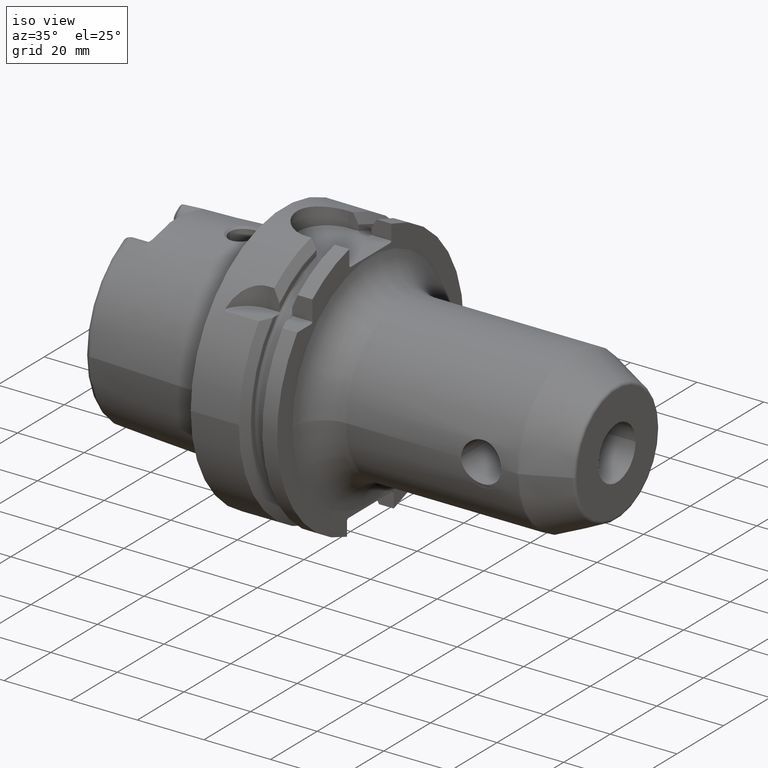
[diagram: clean part render]
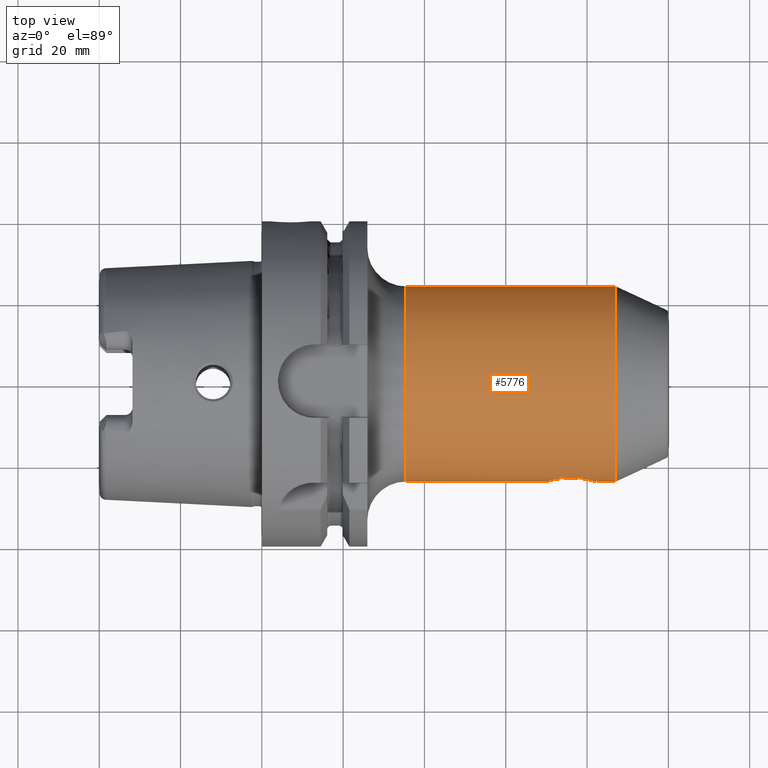
[diagram: tour spotlight — one face highlighted and labeled with its STEP entity id]
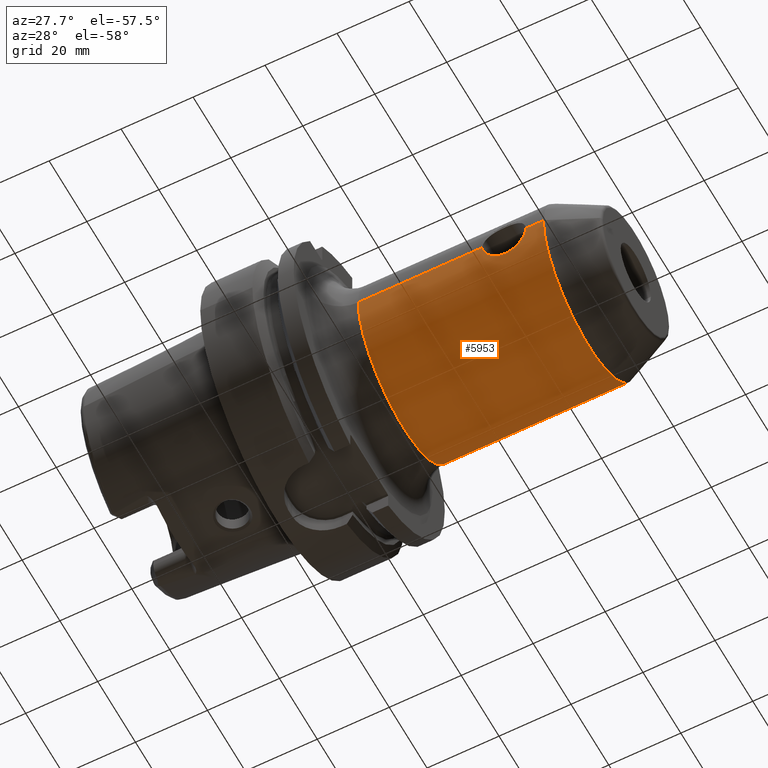
[diagram: tour spotlight — one face highlighted and labeled with its STEP entity id]
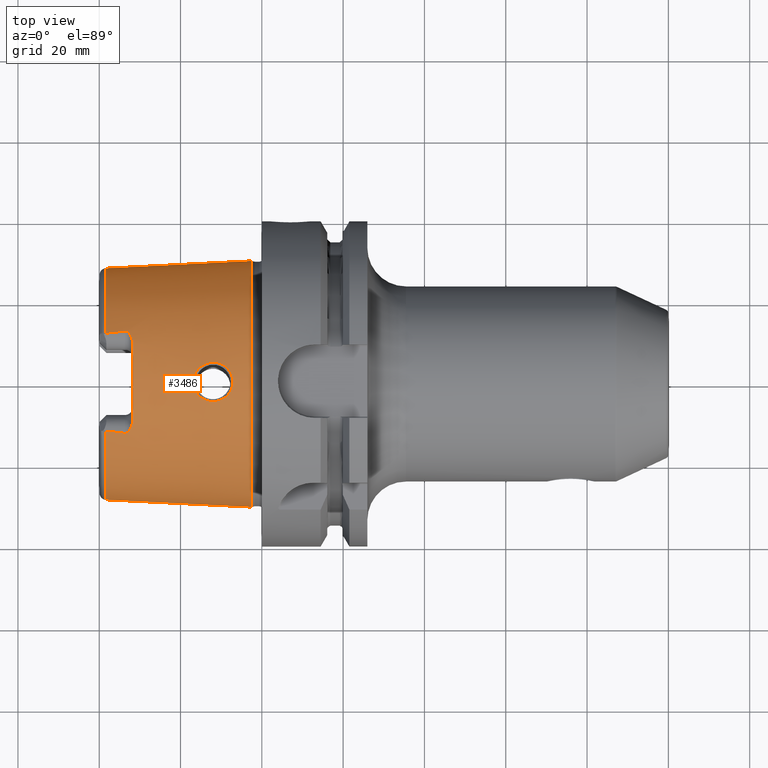
[diagram: tour spotlight — one face highlighted and labeled with its STEP entity id]
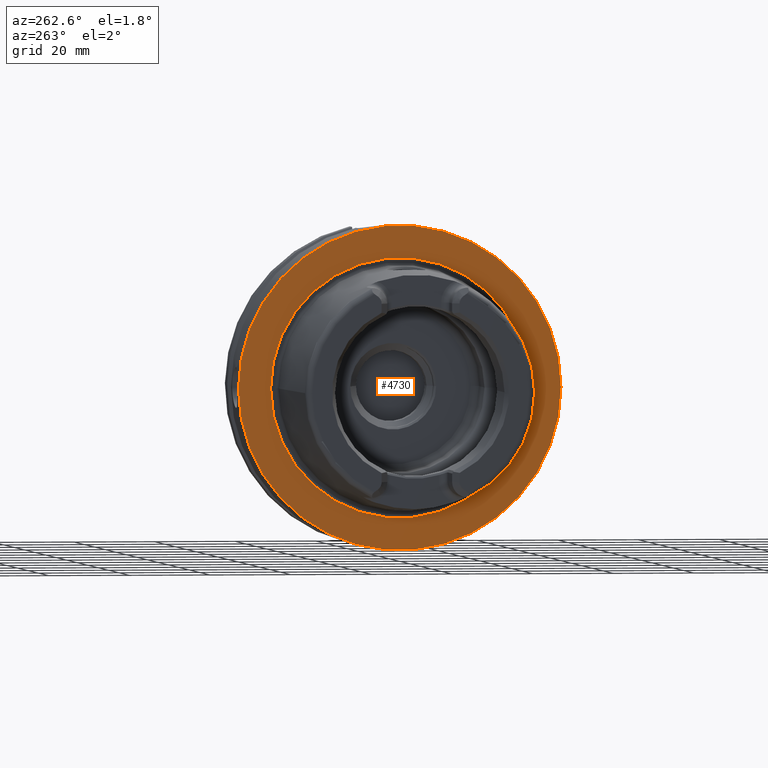
[diagram: tour spotlight — one face highlighted and labeled with its STEP entity id]
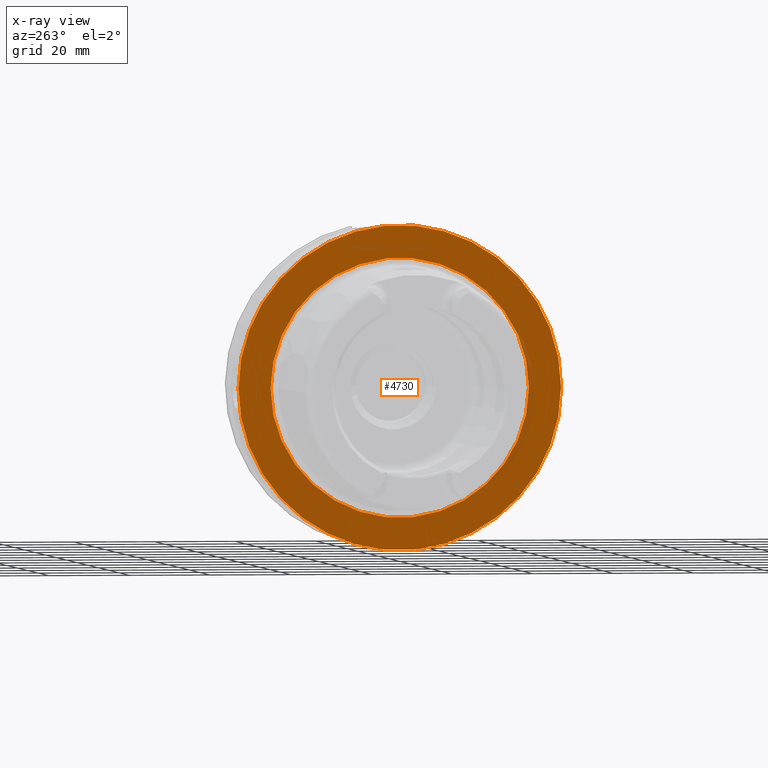
[diagram: x-ray of the same camera — body ghosted, this tour face saturated]
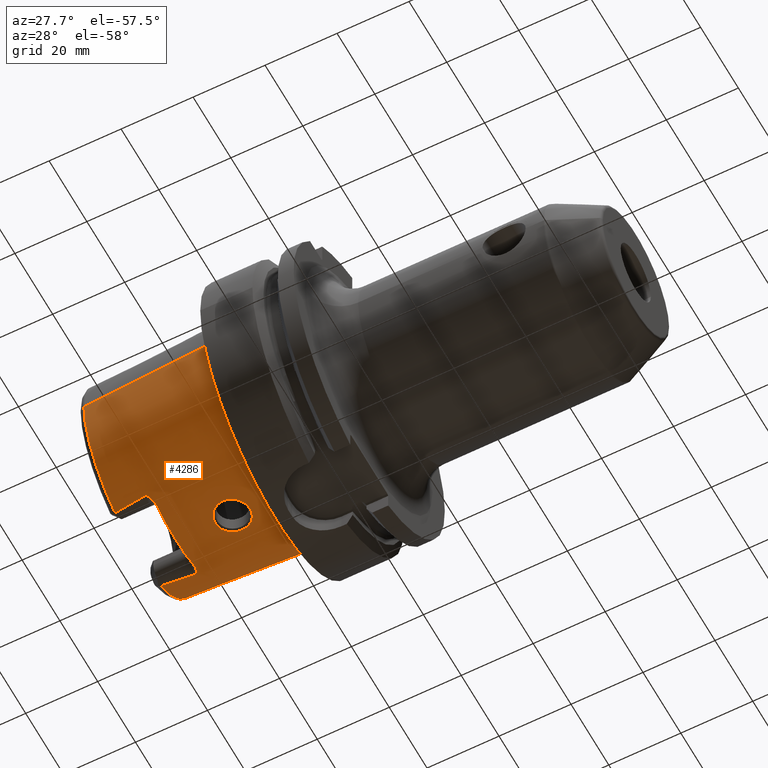
[diagram: tour spotlight — one face highlighted and labeled with its STEP entity id]
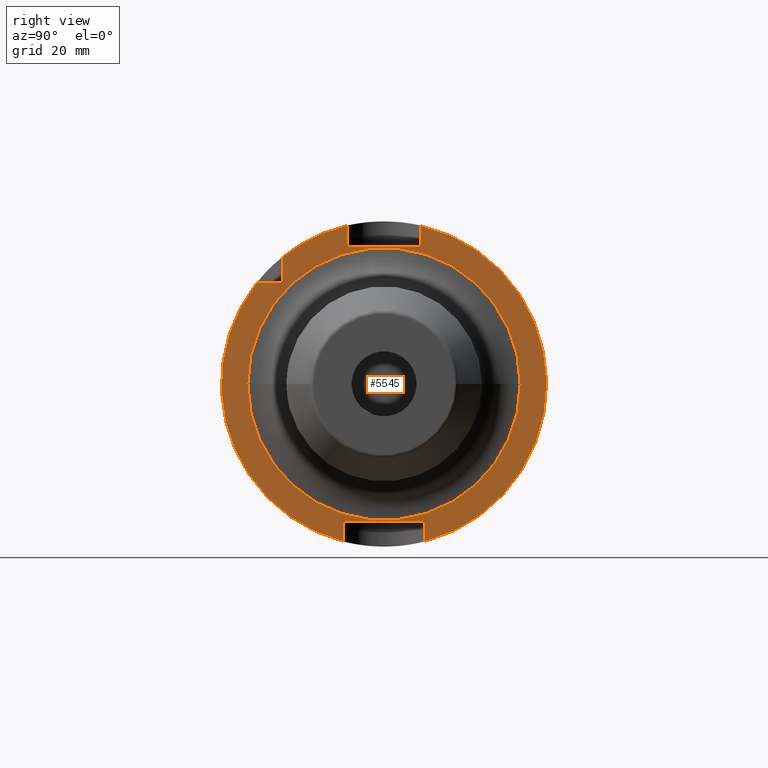
[diagram: tour spotlight — one face highlighted and labeled with its STEP entity id]
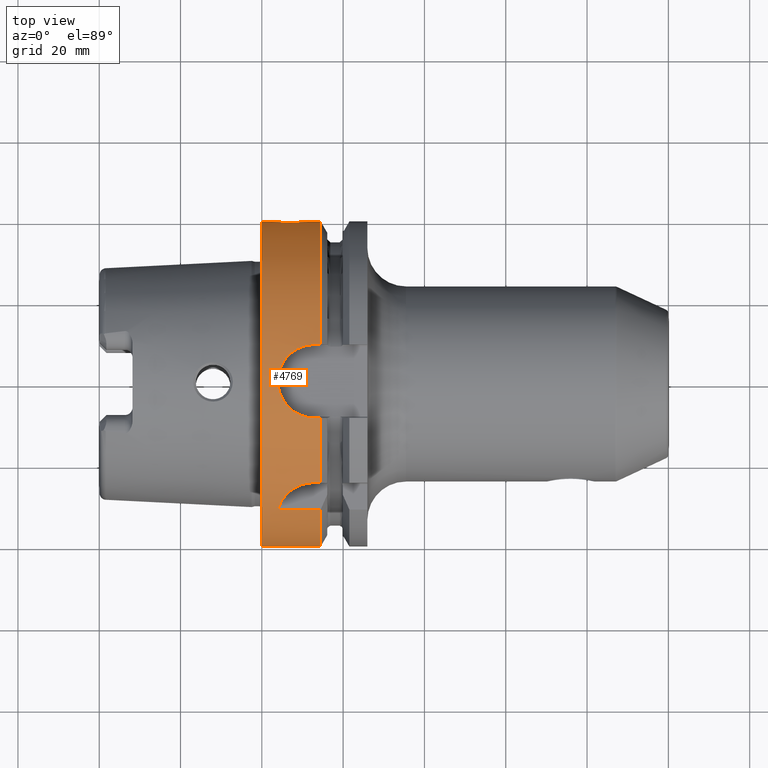
[diagram: tour spotlight — one face highlighted and labeled with its STEP entity id]
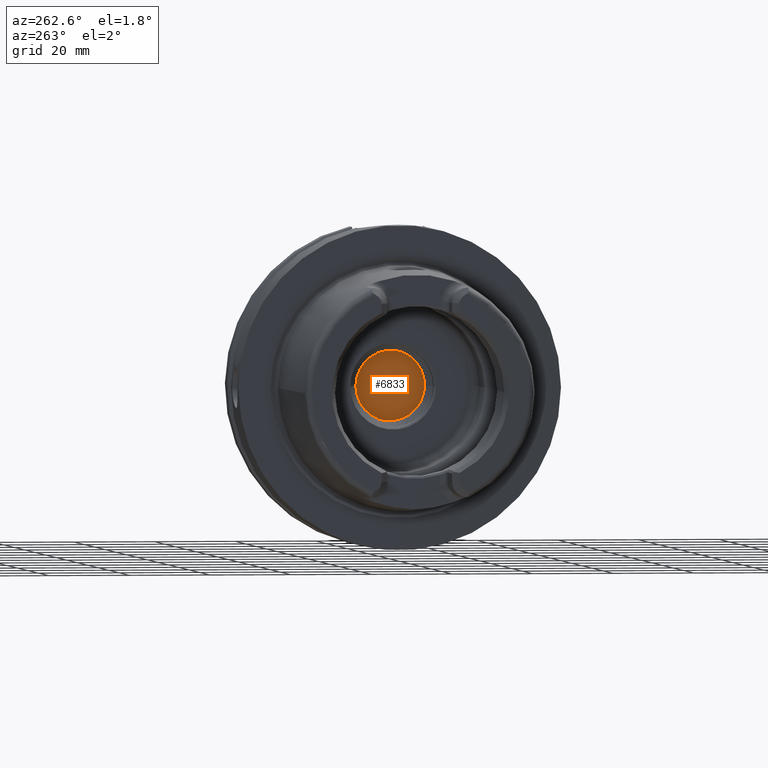
[diagram: tour spotlight — one face highlighted and labeled with its STEP entity id]
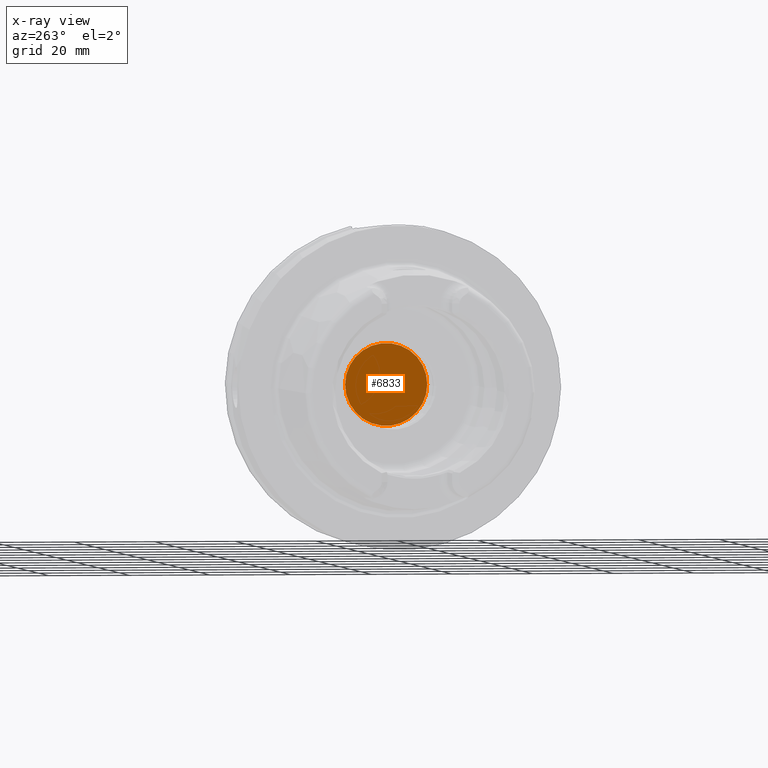
[diagram: x-ray of the same camera — body ghosted, this tour face saturated]
A machine part: a face-by-face anatomy tour. The part has 190 B-rep faces; the first image is the clean iso view, then the 8 largest visible faces are spotlighted one at a time (largest first), each with its STEP entity span.

Face 1 — top view, entity #5776. In plain terms, the highlighted cylindrical surface (partial cylindrical patch) has radius 24 mm, axis along (1, 0, 0).
Definition (entity closure, byte-faithful):
#2117=CARTESIAN_POINT('',(7.E1,-2.4E1,0.E0));
#2118=CARTESIAN_POINT('',(7.E1,-2.4E1,2.477917022418E-1));
#2119=CARTESIAN_POINT('',(7.003031307991E1,-2.399239312087E1,
7.430107699839E-1));
#2120=CARTESIAN_POINT('',(7.017194180488E1,-2.395736644567E1,1.493354354613E0));
#2121=CARTESIAN_POINT('',(7.040936188842E1,-2.390042638431E1,2.222515353025E0));
#2122=CARTESIAN_POINT('',(7.073545493526E1,-2.382589042015E1,2.911416186879E0));
#2123=CARTESIAN_POINT('',(7.114359335064E1,-2.373858503195E1,3.550797953452E0));
#2124=CARTESIAN_POINT('',(7.163240973621E1,-2.364291900347E1,4.137367715785E0));
#2125=CARTESIAN_POINT('',(7.219008635558E1,-2.354574380392E1,4.656021052142E0));
#2126=CARTESIAN_POINT('',(7.281078942191E1,-2.345283163757E1,5.101096780044E0));
#2127=CARTESIAN_POINT('',(7.347569260864E1,-2.337128037784E1,5.460589521688E0));
#2128=CARTESIAN_POINT('',(7.417999509457E1,-2.330542345764E1,5.733682675885E0));
#2129=CARTESIAN_POINT('',(7.490395259587E1,-2.325987046211E1,5.914763388263E0));
#2130=CARTESIAN_POINT('',(7.564654129181E1,-2.323662218192E1,6.004964036942E0));
#2131=CARTESIAN_POINT('',(7.638836501185E1,-2.323718076575E1,6.002814494013E0));
#2132=CARTESIAN_POINT('',(7.713058753963E1,-2.326153225515E1,5.908259270358E0));
#2133=CARTESIAN_POINT('',(7.785351378792E1,-2.330807531099E1,5.722955058829E0));
#2134=CARTESIAN_POINT('',(7.855668286222E1,-2.337481713083E1,5.445512487382E0));
#2135=CARTESIAN_POINT('',(7.921927096255E1,-2.345696094752E1,5.082182720346E0));
#2136=CARTESIAN_POINT('',(7.983757314460E1,-2.355025926154E1,4.633246828811E0));
#2137=CARTESIAN_POINT('',(8.039201356727E1,-2.364746553587E1,4.111459343109E0));
#2138=CARTESIAN_POINT('',(8.087798849474E1,-2.374302933962E1,3.521150244353E0));
#2139=CARTESIAN_POINT('',(8.128195669194E1,-2.382977011799E1,2.879561292221E0));
#2140=CARTESIAN_POINT('',(8.160149780748E1,-2.390299865724E1,2.193647280847E0));
#2141=CARTESIAN_POINT('',(8.183084261608E1,-2.395805854140E1,1.479420343060E0));
#2142=CARTESIAN_POINT('',(8.196943381336E1,-2.399233001052E1,
7.423531793238E-1));
#2143=CARTESIAN_POINT('',(8.2E1,-2.4E1,2.484730474860E-1));
#2144=CARTESIAN_POINT('',(8.2E1,-2.4E1,0.E0));
#2146=CARTESIAN_POINT('',(3.545E1,0.E0,0.E0));
#2147=DIRECTION('',(1.E0,0.E0,0.E0));
#2148=DIRECTION('',(0.E0,1.E0,0.E0));
#2149=AXIS2_PLACEMENT_3D('',#2146,#2147,#2148);
#2151=CARTESIAN_POINT('',(8.691126381430E1,0.E0,0.E0));
#2152=DIRECTION('',(-1.E0,0.E0,0.E0));
#2153=DIRECTION('',(0.E0,-1.E0,0.E0));
#2154=AXIS2_PLACEMENT_3D('',#2151,#2152,#2153);
#2335=DIRECTION('',(-1.E0,0.E0,-3.233359720301E-14));
#2336=VECTOR('',#2335,4.911263814300E0);
#2337=CARTESIAN_POINT('',(8.691126381430E1,-2.4E1,1.562298243284E-13));
#2338=LINE('',#2337,#2336);
#2344=DIRECTION('',(-1.E0,0.E0,1.113977943256E-14));
#2345=VECTOR('',#2344,5.146126381430E1);
#2346=CARTESIAN_POINT('',(8.691126381430E1,2.4E1,-1.569696577959E-13));
#2347=LINE('',#2346,#2345);
#2353=DIRECTION('',(-1.E0,0.E0,-1.199765417624E-14));
#2354=VECTOR('',#2353,3.455E1);
#2355=CARTESIAN_POINT('',(7.E1,-2.4E1,0.E0));
#2356=LINE('',#2355,#2354);
#3412=CARTESIAN_POINT('',(7.E1,-2.4E1,0.E0));
#3414=VERTEX_POINT('',#3412);
#3416=CARTESIAN_POINT('',(8.2E1,-2.4E1,0.E0));
#3418=VERTEX_POINT('',#3416);
#3429=CARTESIAN_POINT('',(3.545E1,-2.4E1,0.E0));
#3430=CARTESIAN_POINT('',(3.545E1,2.4E1,0.E0));
#3431=VERTEX_POINT('',#3429);
#3432=VERTEX_POINT('',#3430);
#3441=CARTESIAN_POINT('',(8.691126381430E1,2.4E1,0.E0));
#3442=CARTESIAN_POINT('',(8.691126381430E1,-2.4E1,0.E0));
#3443=VERTEX_POINT('',#3441);
#3444=VERTEX_POINT('',#3442);
#5758=CARTESIAN_POINT('',(2.22475E1,0.E0,0.E0));
#5759=DIRECTION('',(1.E0,0.E0,0.E0));
#5760=DIRECTION('',(0.E0,-1.E0,0.E0));
#5761=AXIS2_PLACEMENT_3D('',#5758,#5759,#5760);
#5762=CYLINDRICAL_SURFACE('',#5761,2.4E1);
#5764=ORIENTED_EDGE('',*,*,#5763,.F.);
#5766=ORIENTED_EDGE('',*,*,#5765,.T.);
#5767=ORIENTED_EDGE('',*,*,#5752,.F.);
#5769=ORIENTED_EDGE('',*,*,#5768,.F.);
#5771=ORIENTED_EDGE('',*,*,#5770,.F.);
#5773=ORIENTED_EDGE('',*,*,#5772,.T.);
#5774=EDGE_LOOP('',(#5764,#5766,#5767,#5769,#5771,#5773));
#5775=FACE_OUTER_BOUND('',#5774,.F.);
#5776=ADVANCED_FACE('',(#5775),#5762,.T.);
#2145=B_SPLINE_CURVE_WITH_KNOTS('',3,(#2117,#2118,#2119,#2120,#2121,#2122,#2123,
#2124,#2125,#2126,#2127,#2128,#2129,#2130,#2131,#2132,#2133,#2134,#2135,#2136,
#2137,#2138,#2139,#2140,#2141,#2142,#2143,#2144),.UNSPECIFIED.,.F.,.F.,(4,1,1,1,
1,1,1,1,1,1,1,1,1,1,1,1,1,1,1,1,1,1,1,1,1,4),(0.E0,4.E-2,8.E-2,1.2E-1,1.6E-1,
2.E-1,2.4E-1,2.8E-1,3.2E-1,3.6E-1,4.E-1,4.4E-1,4.8E-1,5.2E-1,5.6E-1,6.E-1,
6.4E-1,6.8E-1,7.2E-1,7.6E-1,8.E-1,8.4E-1,8.8E-1,9.2E-1,9.6E-1,1.E0),
.UNSPECIFIED.);
#2150=CIRCLE('',#2149,2.4E1);
#2155=CIRCLE('',#2154,2.4E1);
#5752=EDGE_CURVE('',#3432,#3431,#2150,.T.);
#5763=EDGE_CURVE('',#3414,#3418,#2145,.T.);
#5765=EDGE_CURVE('',#3414,#3431,#2356,.T.);
#5768=EDGE_CURVE('',#3443,#3432,#2347,.T.);
#5770=EDGE_CURVE('',#3444,#3443,#2155,.T.);
#5772=EDGE_CURVE('',#3444,#3418,#2338,.T.);

Face 2 — auxiliary view, entity #5953. In plain terms, the highlighted cylindrical surface (partial cylindrical patch) has radius 24 mm, axis along (1, 0, 0).
Definition (entity closure, byte-faithful):
#2306=CARTESIAN_POINT('',(8.2E1,-2.4E1,0.E0));
#2307=CARTESIAN_POINT('',(8.2E1,-2.4E1,-2.489456297532E-1));
#2308=CARTESIAN_POINT('',(8.196931060354E1,-2.399229912583E1,
-7.437456052756E-1));
#2309=CARTESIAN_POINT('',(8.183026168618E1,-2.395791542102E1,
-1.481955279273E0));
#2310=CARTESIAN_POINT('',(8.160002290904E1,-2.390264992903E1,
-2.197557558002E0));
#2311=CARTESIAN_POINT('',(8.127946719554E1,-2.382921173168E1,
-2.884255073446E0));
#2312=CARTESIAN_POINT('',(8.087387136692E1,-2.374217455698E1,
-3.526954724410E0));
#2313=CARTESIAN_POINT('',(8.038639427135E1,-2.364640953066E1,
-4.117541017387E0));
#2314=CARTESIAN_POINT('',(7.982991757305E1,-2.354899732375E1,
-4.639658253113E0));
#2315=CARTESIAN_POINT('',(7.920986531312E1,-2.345565438849E1,
-5.088194464469E0));
#2316=CARTESIAN_POINT('',(7.854519160490E1,-2.337354389098E1,
-5.450958627022E0));
#2317=CARTESIAN_POINT('',(7.784028319921E1,-2.330700863189E1,
-5.727278658608E0));
#2318=CARTESIAN_POINT('',(7.711551325228E1,-2.326078573019E1,
-5.911184298323E0));
#2319=CARTESIAN_POINT('',(7.637172174111E1,-2.323689315248E1,
-6.003921598397E0));
#2320=CARTESIAN_POINT('',(7.562851217377E1,-2.323688887216E1,
-6.003938231712E0));
#2321=CARTESIAN_POINT('',(7.488468395565E1,-2.326077671143E1,
-5.911219234599E0));
#2322=CARTESIAN_POINT('',(7.415997736252E1,-2.330698763448E1,
-5.727364366257E0));
#2323=CARTESIAN_POINT('',(7.345496924812E1,-2.337352655523E1,
-5.451031175813E0));
#2324=CARTESIAN_POINT('',(7.279040183763E1,-2.345561755777E1,
-5.088365368577E0));
#2325=CARTESIAN_POINT('',(7.217019810275E1,-2.354897835089E1,
-4.639751036074E0));
#2326=CARTESIAN_POINT('',(7.161384498106E1,-2.364636508495E1,
-4.117798826154E0));
#2327=CARTESIAN_POINT('',(7.112619514117E1,-2.374216054900E1,
-3.527044409047E0));
#2328=CARTESIAN_POINT('',(7.072071891928E1,-2.382917066687E1,
-2.884593609772E0));
#2329=CARTESIAN_POINT('',(7.040001150633E1,-2.390264138538E1,
-2.197660843164E0));
#2330=CARTESIAN_POINT('',(7.016979194086E1,-2.395790246760E1,
-1.482164818592E0));
#2331=CARTESIAN_POINT('',(7.003068353250E1,-2.399230047937E1,
-7.437602837049E-1));
#2332=CARTESIAN_POINT('',(7.E1,-2.4E1,-2.489485043415E-1));
#2333=CARTESIAN_POINT('',(7.E1,-2.4E1,0.E0));
#2335=DIRECTION('',(-1.E0,0.E0,-3.233359720301E-14));
#2336=VECTOR('',#2335,4.911263814300E0);
#2337=CARTESIAN_POINT('',(8.691126381430E1,-2.4E1,1.562298243284E-13));
#2338=LINE('',#2337,#2336);
#2339=CARTESIAN_POINT('',(8.691126381430E1,0.E0,0.E0));
#2340=DIRECTION('',(-1.E0,0.E0,0.E0));
#2341=DIRECTION('',(0.E0,1.E0,0.E0));
#2342=AXIS2_PLACEMENT_3D('',#2339,#2340,#2341);
#2344=DIRECTION('',(-1.E0,0.E0,1.113977943256E-14));
#2345=VECTOR('',#2344,5.146126381430E1);
#2346=CARTESIAN_POINT('',(8.691126381430E1,2.4E1,-1.569696577959E-13));
#2347=LINE('',#2346,#2345);
#2348=CARTESIAN_POINT('',(3.545E1,0.E0,0.E0));
#2349=DIRECTION('',(1.E0,0.E0,0.E0));
#2350=DIRECTION('',(0.E0,-1.E0,0.E0));
#2351=AXIS2_PLACEMENT_3D('',#2348,#2349,#2350);
#2353=DIRECTION('',(-1.E0,0.E0,-1.199765417624E-14));
#2354=VECTOR('',#2353,3.455E1);
#2355=CARTESIAN_POINT('',(7.E1,-2.4E1,0.E0));
#2356=LINE('',#2355,#2354);
#3412=CARTESIAN_POINT('',(7.E1,-2.4E1,0.E0));
#3414=VERTEX_POINT('',#3412);
#3416=CARTESIAN_POINT('',(8.2E1,-2.4E1,0.E0));
#3418=VERTEX_POINT('',#3416);
#3429=CARTESIAN_POINT('',(3.545E1,-2.4E1,0.E0));
#3430=CARTESIAN_POINT('',(3.545E1,2.4E1,0.E0));
#3431=VERTEX_POINT('',#3429);
#3432=VERTEX_POINT('',#3430);
#3441=CARTESIAN_POINT('',(8.691126381430E1,2.4E1,0.E0));
#3442=CARTESIAN_POINT('',(8.691126381430E1,-2.4E1,0.E0));
#3443=VERTEX_POINT('',#3441);
#3444=VERTEX_POINT('',#3442);
#5940=CARTESIAN_POINT('',(2.22475E1,0.E0,0.E0));
#5941=DIRECTION('',(1.E0,0.E0,0.E0));
#5942=DIRECTION('',(0.E0,-1.E0,0.E0));
#5943=AXIS2_PLACEMENT_3D('',#5940,#5941,#5942);
#5944=CYLINDRICAL_SURFACE('',#5943,2.4E1);
#5945=ORIENTED_EDGE('',*,*,#5801,.F.);
#5946=ORIENTED_EDGE('',*,*,#5772,.F.);
#5947=ORIENTED_EDGE('',*,*,#5932,.F.);
#5948=ORIENTED_EDGE('',*,*,#5768,.T.);
#5949=ORIENTED_EDGE('',*,*,#5738,.F.);
#5950=ORIENTED_EDGE('',*,*,#5765,.F.);
#5951=EDGE_LOOP('',(#5945,#5946,#5947,#5948,#5949,#5950));
#5952=FACE_OUTER_BOUND('',#5951,.F.);
#5953=ADVANCED_FACE('',(#5952),#5944,.T.);
#2334=B_SPLINE_CURVE_WITH_KNOTS('',3,(#2306,#2307,#2308,#2309,#2310,#2311,#2312,
#2313,#2314,#2315,#2316,#2317,#2318,#2319,#2320,#2321,#2322,#2323,#2324,#2325,
#2326,#2327,#2328,#2329,#2330,#2331,#2332,#2333),.UNSPECIFIED.,.F.,.F.,(4,1,1,1,
1,1,1,1,1,1,1,1,1,1,1,1,1,1,1,1,1,1,1,1,1,4),(0.E0,4.E-2,8.E-2,1.2E-1,1.6E-1,
2.E-1,2.4E-1,2.8E-1,3.2E-1,3.6E-1,4.E-1,4.4E-1,4.8E-1,5.2E-1,5.6E-1,6.E-1,
6.4E-1,6.8E-1,7.2E-1,7.6E-1,8.E-1,8.4E-1,8.8E-1,9.2E-1,9.6E-1,1.E0),
.UNSPECIFIED.);
#2343=CIRCLE('',#2342,2.4E1);
#2352=CIRCLE('',#2351,2.4E1);
#5738=EDGE_CURVE('',#3431,#3432,#2352,.T.);
#5765=EDGE_CURVE('',#3414,#3431,#2356,.T.);
#5768=EDGE_CURVE('',#3443,#3432,#2347,.T.);
#5772=EDGE_CURVE('',#3444,#3418,#2338,.T.);
#5801=EDGE_CURVE('',#3418,#3414,#2334,.T.);
#5932=EDGE_CURVE('',#3443,#3444,#2343,.T.);

Face 3 — top view, entity #3486. In plain terms, the highlighted conical surface has half-angle 2.868 deg.
Definition (entity closure, byte-faithful):
#2=CARTESIAN_POINT('',(-3.838005958779E1,-1.202761494014E1,2.582E1));
#3=CARTESIAN_POINT('',(-3.787001628786E1,-1.208813029846E1,2.582E1));
#4=CARTESIAN_POINT('',(-3.684328790090E1,-1.220919847539E1,2.582E1));
#5=CARTESIAN_POINT('',(-3.528334906851E1,-1.239091780986E1,2.582E1));
#6=CARTESIAN_POINT('',(-3.423000506102E1,-1.251216867025E1,2.582E1));
#7=CARTESIAN_POINT('',(-3.37E1,-1.257282075212E1,2.582E1));
#9=CARTESIAN_POINT('',(-3.18E1,0.E0,0.E0));
#10=DIRECTION('',(1.E0,0.E0,0.E0));
#11=DIRECTION('',(0.E0,3.298905943227E-1,9.440191712976E-1));
#12=AXIS2_PLACEMENT_3D('',#9,#10,#11);
#14=CARTESIAN_POINT('',(-3.37E1,1.257282075212E1,2.582E1));
#15=CARTESIAN_POINT('',(-3.422998473003E1,1.251217099686E1,2.582E1));
#16=CARTESIAN_POINT('',(-3.528330164043E1,1.239092329222E1,2.582E1));
#17=CARTESIAN_POINT('',(-3.684324088319E1,1.220920399510E1,2.582E1));
#18=CARTESIAN_POINT('',(-3.786999614236E1,1.208813268867E1,2.582E1));
#19=CARTESIAN_POINT('',(-3.838005958779E1,1.202761494014E1,2.582E1));
#21=CARTESIAN_POINT('',(-2.5E0,0.E0,0.E0));
#22=DIRECTION('',(1.E0,0.E0,0.E0));
#23=DIRECTION('',(0.E0,1.E0,0.E0));
#24=AXIS2_PLACEMENT_3D('',#21,#22,#23);
#26=CARTESIAN_POINT('',(-1.684926277274E1,-1.002884470798E-10,
2.956263755557E1));
#27=CARTESIAN_POINT('',(-1.684937304044E1,2.033861341723E-1,2.956267949939E1));
#28=CARTESIAN_POINT('',(-1.682163157721E1,6.410289906772E-1,2.955948957445E1));
#29=CARTESIAN_POINT('',(-1.668837856093E1,1.302835564834E0,2.954461139449E1));
#30=CARTESIAN_POINT('',(-1.645061469174E1,1.966039111372E0,2.951956742161E1));
#31=CARTESIAN_POINT('',(-1.611941320151E1,2.587782446801E0,2.948789404824E1));
#32=CARTESIAN_POINT('',(-1.570132589063E1,3.155309242196E0,2.945324904672E1));
#33=CARTESIAN_POINT('',(-1.520571059301E1,3.655918779164E0,2.941991203695E1));
#34=CARTESIAN_POINT('',(-1.464408370550E1,4.078817868490E0,2.939227627186E1));
#35=CARTESIAN_POINT('',(-1.402807251898E1,4.416143754398E0,2.937435300650E1));
#36=CARTESIAN_POINT('',(-1.337011775297E1,4.661531150171E0,2.936952263481E1));
#37=CARTESIAN_POINT('',(-1.268341907618E1,4.810200619440E0,2.938023670559E1));
#38=CARTESIAN_POINT('',(-1.198171612511E1,4.859013833167E0,2.940778493598E1));
#39=CARTESIAN_POINT('',(-1.127913216107E1,4.806537694062E0,2.945214180404E1));
#40=CARTESIAN_POINT('',(-1.058998296166E1,4.653073350805E0,2.951191391226E1));
#41=CARTESIAN_POINT('',(-9.929264808533E0,4.401094116533E0,2.958429239917E1));
#42=CARTESIAN_POINT('',(-9.311456301687E0,4.055347374901E0,2.966526429372E1));
#43=CARTESIAN_POINT('',(-8.750589837153E0,3.623174396625E0,2.974984946794E1));
#44=CARTESIAN_POINT('',(-8.259202472749E0,3.114211891448E0,2.983257860859E1));
#45=CARTESIAN_POINT('',(-7.848385239702E0,2.540769074061E0,2.990789501548E1));
#46=CARTESIAN_POINT('',(-7.526395885301E0,1.916767288886E0,2.997082027656E1));
#47=CARTESIAN_POINT('',(-7.297993576609E0,1.254497366463E0,3.001752398256E1));
#48=CARTESIAN_POINT('',(-7.175209953833E0,6.091949575265E-1,3.004335015960E1));
#49=CARTESIAN_POINT('',(-7.150670116772E0,1.884000434015E-1,3.004856720548E1));
#50=CARTESIAN_POINT('',(-7.150738218315E0,5.651020425119E-11,3.004853462804E1));
#52=CARTESIAN_POINT('',(-7.150738218315E0,5.651020425119E-11,3.004853462804E1));
#53=CARTESIAN_POINT('',(-7.150639194679E0,-2.008127303189E-1,3.004858265701E1));
#54=CARTESIAN_POINT('',(-7.177595076216E0,-6.339537647100E-1,3.004283618319E1));
#55=CARTESIAN_POINT('',(-7.307733291871E0,-1.290522041472E0,3.001549880947E1));
#56=CARTESIAN_POINT('',(-7.541192489454E0,-1.951003281635E0,2.996785355279E1));
#57=CARTESIAN_POINT('',(-7.868035178490E0,-2.572630096537E0,2.990416558295E1));
#58=CARTESIAN_POINT('',(-8.283376487059E0,-3.143002895017E0,2.982832078229E1));
#59=CARTESIAN_POINT('',(-8.778784502038E0,-3.648197291895E0,2.974534652783E1));
#60=CARTESIAN_POINT('',(-9.342975409414E0,-4.075967574833E0,2.966082359098E1));
#61=CARTESIAN_POINT('',(-9.963360418374E0,-4.416864489204E0,2.958019763333E1));
#62=CARTESIAN_POINT('',(-1.062592778541E1,-4.663711299534E0,2.950839906361E1));
#63=CARTESIAN_POINT('',(-1.131616090171E1,-4.811863720704E0,2.944938575639E1));
#64=CARTESIAN_POINT('',(-1.201903411255E1,-4.858961889764E0,2.940589824070E1));
#65=CARTESIAN_POINT('',(-1.272025286322E1,-4.804813544591E0,2.937925425199E1));
#66=CARTESIAN_POINT('',(-1.340572831730E1,-4.650946098487E0,2.936940607344E1));
#67=CARTESIAN_POINT('',(-1.406176456909E1,-4.400579887980E0,2.937499829139E1));
#68=CARTESIAN_POINT('',(-1.467520997003E1,-4.058561372629E0,2.939352591856E1));
#69=CARTESIAN_POINT('',(-1.523361553652E1,-3.631361090141E0,2.942156637027E1));
#70=CARTESIAN_POINT('',(-1.572537628578E1,-3.126974958736E0,2.945508044252E1));
#71=CARTESIAN_POINT('',(-1.613907889225E1,-2.556295092848E0,2.948967040454E1));
#72=CARTESIAN_POINT('',(-1.646548959217E1,-1.932090523715E0,2.952107799393E1));
#73=CARTESIAN_POINT('',(-1.669818831847E1,-1.267075322463E0,2.954568455629E1));
#74=CARTESIAN_POINT('',(-1.682404263510E1,-6.164275527337E-1,2.955977259489E1));
#75=CARTESIAN_POINT('',(-1.684933892991E1,-1.910760055714E-1,2.956266622578E1));
#76=CARTESIAN_POINT('',(-1.684926277274E1,-1.002884470798E-10,
2.956263755557E1));
#86=CARTESIAN_POINT('',(-3.256049631843E1,-1.19E1,2.619962788776E1));
#87=CARTESIAN_POINT('',(-3.261602752785E1,-1.198490537769E1,2.615800780208E1));
#88=CARTESIAN_POINT('',(-3.273200125842E1,-1.213917745364E1,2.608054194551E1));
#89=CARTESIAN_POINT('',(-3.292092650722E1,-1.232485155039E1,2.598269910656E1));
#90=CARTESIAN_POINT('',(-3.311910867137E1,-1.246020915663E1,2.590692822175E1));
#91=CARTESIAN_POINT('',(-3.331744562008E1,-1.254389546970E1,2.585539856424E1));
#92=CARTESIAN_POINT('',(-3.350854052034E1,-1.258151788313E1,2.582643479434E1));
#93=CARTESIAN_POINT('',(-3.363663769880E1,-1.258007173095E1,2.582E1));
#94=CARTESIAN_POINT('',(-3.37E1,-1.257282075212E1,2.582E1));
#96=CARTESIAN_POINT('',(-3.18E1,-9.505342226388E0,2.720060967448E1));
#97=CARTESIAN_POINT('',(-3.18E1,-9.649242527110E0,2.715032324263E1));
#98=CARTESIAN_POINT('',(-3.181755867472E1,-9.946865130161E0,2.704281700902E1));
#99=CARTESIAN_POINT('',(-3.190259926041E1,-1.042016501910E1,2.685965570649E1));
#100=CARTESIAN_POINT('',(-3.205601682004E1,-1.092429939880E1,2.665052855991E1));
#101=CARTESIAN_POINT('',(-3.228114186276E1,-1.143654264419E1,2.642234259686E1));
#102=CARTESIAN_POINT('',(-3.246137222668E1,-1.174844255084E1,2.627392040244E1));
#103=CARTESIAN_POINT('',(-3.256049631843E1,-1.19E1,2.619962788776E1));
#191=CARTESIAN_POINT('',(-3.838005958779E1,0.E0,0.E0));
#192=DIRECTION('',(1.E0,0.E0,0.E0));
#193=DIRECTION('',(0.E0,1.E0,0.E0));
#194=AXIS2_PLACEMENT_3D('',#191,#192,#193);
#201=CARTESIAN_POINT('',(-3.838005958779E1,1.202761494014E1,2.582E1));
#273=CARTESIAN_POINT('',(-3.838005958779E1,0.E0,0.E0));
#274=DIRECTION('',(1.E0,0.E0,0.E0));
#275=DIRECTION('',(0.E0,-4.222592419107E-1,9.064751141763E-1));
#276=AXIS2_PLACEMENT_3D('',#273,#274,#275);
#469=CARTESIAN_POINT('',(-3.256049631843E1,1.19E1,2.619962788776E1));
#470=CARTESIAN_POINT('',(-3.246125324519E1,1.174826063209E1,2.627400957788E1));
#471=CARTESIAN_POINT('',(-3.228093163735E1,1.143609460033E1,2.642254529101E1));
#472=CARTESIAN_POINT('',(-3.205613775510E1,1.092457454830E1,2.665040597024E1));
#473=CARTESIAN_POINT('',(-3.190262587682E1,1.042031941347E1,2.685959626116E1));
#474=CARTESIAN_POINT('',(-3.181756598114E1,9.946935005697E0,2.704279107821E1));
#475=CARTESIAN_POINT('',(-3.18E1,9.649263546290E0,2.715031589741E1));
#476=CARTESIAN_POINT('',(-3.18E1,9.505342226388E0,2.720060967448E1));
#510=CARTESIAN_POINT('',(-3.37E1,1.257282075212E1,2.582E1));
#511=CARTESIAN_POINT('',(-3.363542652594E1,1.258021033370E1,2.582E1));
#512=CARTESIAN_POINT('',(-3.350488583529E1,1.258184559471E1,2.582647968574E1));
#513=CARTESIAN_POINT('',(-3.330304964188E1,1.253975466323E1,2.585821384966E1));
#514=CARTESIAN_POINT('',(-3.310808158990E1,1.245349367346E1,2.591076969470E1));
#515=CARTESIAN_POINT('',(-3.291635118129E1,1.232056995733E1,2.598497486540E1));
#516=CARTESIAN_POINT('',(-3.273089922141E1,1.213766451026E1,2.608129903733E1));
#517=CARTESIAN_POINT('',(-3.261579755266E1,1.198455375326E1,2.615818016618E1));
#518=CARTESIAN_POINT('',(-3.256049631843E1,1.19E1,2.619962788776E1));
#779=DIRECTION('',(-9.987473526255E-1,5.003724236654E-2,0.E0));
#780=VECTOR('',#779,3.592506102115E1);
#781=CARTESIAN_POINT('',(-2.5E0,-3.028155E1,0.E0));
#782=LINE('',#781,#780);
#788=DIRECTION('',(-9.987473526255E-1,-5.003724236654E-2,0.E0));
#789=VECTOR('',#788,3.592506102115E1);
#790=CARTESIAN_POINT('',(-2.5E0,3.028155E1,0.E0));
#791=LINE('',#790,#789);
#2955=CARTESIAN_POINT('',(-2.5E0,3.028155E1,0.E0));
#2956=CARTESIAN_POINT('',(-2.5E0,-3.028155E1,0.E0));
#2957=VERTEX_POINT('',#2955);
#2958=VERTEX_POINT('',#2956);
#2959=CARTESIAN_POINT('',(-3.838005958779E1,2.848395901465E1,0.E0));
#2960=VERTEX_POINT('',#2959);
#2961=CARTESIAN_POINT('',(-3.838005958779E1,-2.848395901465E1,0.E0));
#2962=VERTEX_POINT('',#2961);
#2976=VERTEX_POINT('',#201);
#2977=CARTESIAN_POINT('',(-3.838005958779E1,-1.202761494014E1,2.582E1));
#2978=VERTEX_POINT('',#2977);
#2993=CARTESIAN_POINT('',(-3.18E1,9.505342226388E0,2.720060967448E1));
#2994=VERTEX_POINT('',#2993);
#2997=CARTESIAN_POINT('',(-3.37E1,1.257282075212E1,2.582E1));
#2998=VERTEX_POINT('',#2997);
#2999=CARTESIAN_POINT('',(-3.18E1,-9.505342226388E0,2.720060967448E1));
#3000=VERTEX_POINT('',#2999);
#3003=CARTESIAN_POINT('',(-3.37E1,-1.257282075212E1,2.582E1));
#3004=VERTEX_POINT('',#3003);
#3005=VERTEX_POINT('',#518);
#3006=VERTEX_POINT('',#86);
#3287=VERTEX_POINT('',#26);
#3288=VERTEX_POINT('',#50);
#3449=CARTESIAN_POINT('',(-2.044002979389E1,0.E0,0.E0));
#3450=DIRECTION('',(1.E0,0.E0,0.E0));
#3451=DIRECTION('',(0.E0,-1.E0,0.E0));
#3452=AXIS2_PLACEMENT_3D('',#3449,#3450,#3451);
#3453=CONICAL_SURFACE('',#3452,2.938275450733E1,2.868120487315E0);
#3455=ORIENTED_EDGE('',*,*,#3454,.T.);
#3457=ORIENTED_EDGE('',*,*,#3456,.F.);
#3459=ORIENTED_EDGE('',*,*,#3458,.F.);
#3461=ORIENTED_EDGE('',*,*,#3460,.F.);
#3463=ORIENTED_EDGE('',*,*,#3462,.F.);
#3465=ORIENTED_EDGE('',*,*,#3464,.F.);
#3467=ORIENTED_EDGE('',*,*,#3466,.T.);
#3469=ORIENTED_EDGE('',*,*,#3468,.F.);
#3471=ORIENTED_EDGE('',*,*,#3470,.F.);
#3473=ORIENTED_EDGE('',*,*,#3472,.T.);
#3475=ORIENTED_EDGE('',*,*,#3474,.T.);
#3477=ORIENTED_EDGE('',*,*,#3476,.F.);
#3478=EDGE_LOOP('',(#3455,#3457,#3459,#3461,#3463,#3465,#3467,#3469,#3471,#3473,
#3475,#3477));
#3479=FACE_OUTER_BOUND('',#3478,.F.);
#3481=ORIENTED_EDGE('',*,*,#3480,.F.);
#3483=ORIENTED_EDGE('',*,*,#3482,.F.);
#3484=EDGE_LOOP('',(#3481,#3483));
#3485=FACE_BOUND('',#3484,.F.);
#3486=ADVANCED_FACE('',(#3479,#3485),#3453,.T.);
#8=B_SPLINE_CURVE_WITH_KNOTS('',3,(#2,#3,#4,#5,#6,#7),.UNSPECIFIED.,.F.,.F.,(4,
1,1,4),(0.E0,3.333333333333E-1,6.666666666667E-1,1.E0),.UNSPECIFIED.);
#13=CIRCLE('',#12,2.881362E1);
#20=B_SPLINE_CURVE_WITH_KNOTS('',3,(#14,#15,#16,#17,#18,#19),.UNSPECIFIED.,.F.,
.F.,(4,1,1,4),(0.E0,3.333333333333E-1,6.666666666667E-1,1.E0),.UNSPECIFIED.);
#25=CIRCLE('',#24,3.028155E1);
#51=B_SPLINE_CURVE_WITH_KNOTS('',3,(#26,#27,#28,#29,#30,#31,#32,#33,#34,#35,#36,
#37,#38,#39,#40,#41,#42,#43,#44,#45,#46,#47,#48,#49,#50),.UNSPECIFIED.,.F.,.F.,(
4,1,1,1,1,1,1,1,1,1,1,1,1,1,1,1,1,1,1,1,1,1,4),(0.E0,4.024163094443E-2,
8.635036534567E-2,1.324590997469E-1,1.785678341482E-1,2.246765685494E-1,
2.707853029506E-1,3.168940373519E-1,3.630027717531E-1,4.091115061544E-1,
4.552202405556E-1,5.013289749569E-1,5.474377093581E-1,5.935464437594E-1,
6.396551781606E-1,6.857639125618E-1,7.318726469631E-1,7.779813813643E-1,
8.240901157656E-1,8.701988501668E-1,9.163075845681E-1,9.624163189693E-1,1.E0),
.UNSPECIFIED.);
#77=B_SPLINE_CURVE_WITH_KNOTS('',3,(#52,#53,#54,#55,#56,#57,#58,#59,#60,#61,#62,
#63,#64,#65,#66,#67,#68,#69,#70,#71,#72,#73,#74,#75,#76),.UNSPECIFIED.,.F.,.F.,(
4,1,1,1,1,1,1,1,1,1,1,1,1,1,1,1,1,1,1,1,1,1,4),(0.E0,4.010005573561E-2,
8.620621504333E-2,1.323123743511E-1,1.784185336588E-1,2.245246929665E-1,
2.706308522742E-1,3.167370115820E-1,3.628431708897E-1,4.089493301974E-1,
4.550554895051E-1,5.011616488128E-1,5.472678081206E-1,5.933739674283E-1,
6.394801267360E-1,6.855862860437E-1,7.316924453515E-1,7.777986046592E-1,
8.239047639669E-1,8.700109232746E-1,9.161170825824E-1,9.622232418901E-1,1.E0),
.UNSPECIFIED.);
#95=B_SPLINE_CURVE_WITH_KNOTS('',3,(#86,#87,#88,#89,#90,#91,#92,#93,#94),
.UNSPECIFIED.,.F.,.F.,(4,1,1,1,1,1,4),(0.E0,1.666666666667E-1,3.333333333333E-1,
5.E-1,6.666666666667E-1,8.333333333333E-1,1.E0),.UNSPECIFIED.);
#104=B_SPLINE_CURVE_WITH_KNOTS('',3,(#96,#97,#98,#99,#100,#101,#102,#103),
.UNSPECIFIED.,.F.,.F.,(4,1,1,1,1,4),(0.E0,2.E-1,4.E-1,6.E-1,8.E-1,1.E0),
.UNSPECIFIED.);
#195=CIRCLE('',#194,2.848395901465E1);
#277=CIRCLE('',#276,2.848395901465E1);
#477=B_SPLINE_CURVE_WITH_KNOTS('',3,(#469,#470,#471,#472,#473,#474,#475,#476),
.UNSPECIFIED.,.F.,.F.,(4,1,1,1,1,4),(0.E0,2.E-1,4.E-1,6.E-1,8.E-1,1.E0),
.UNSPECIFIED.);
#519=B_SPLINE_CURVE_WITH_KNOTS('',3,(#510,#511,#512,#513,#514,#515,#516,#517,
#518),.UNSPECIFIED.,.F.,.F.,(4,1,1,1,1,1,4),(0.E0,1.666666666667E-1,
3.333333333333E-1,5.E-1,6.666666666667E-1,8.333333333333E-1,1.E0),
.UNSPECIFIED.);
#3454=EDGE_CURVE('',#2978,#3004,#8,.T.);
#3456=EDGE_CURVE('',#3006,#3004,#95,.T.);
#3458=EDGE_CURVE('',#3000,#3006,#104,.T.);
#3460=EDGE_CURVE('',#2994,#3000,#13,.T.);
#3462=EDGE_CURVE('',#3005,#2994,#477,.T.);
#3464=EDGE_CURVE('',#2998,#3005,#519,.T.);
#3466=EDGE_CURVE('',#2998,#2976,#20,.T.);
#3468=EDGE_CURVE('',#2960,#2976,#195,.T.);
#3470=EDGE_CURVE('',#2957,#2960,#791,.T.);
#3472=EDGE_CURVE('',#2957,#2958,#25,.T.);
#3474=EDGE_CURVE('',#2958,#2962,#782,.T.);
#3476=EDGE_CURVE('',#2978,#2962,#277,.T.);
#3480=EDGE_CURVE('',#3287,#3288,#51,.T.);
#3482=EDGE_CURVE('',#3288,#3287,#77,.T.);

Face 4 — auxiliary view, entity #4730. An x-ray twin of the same camera follows (body ghosted, this face saturated) — the face is partly hidden behind the body. In plain terms, the highlighted planar face has unit normal (1, 0, 0).
Definition (entity closure, byte-faithful):
#1092=CARTESIAN_POINT('',(2.842170943040E-14,0.E0,0.E0));
#1093=DIRECTION('',(1.E0,0.E0,0.E0));
#1094=DIRECTION('',(0.E0,1.E0,0.E0));
#1095=AXIS2_PLACEMENT_3D('',#1092,#1093,#1094);
#1097=CARTESIAN_POINT('',(2.842170943040E-14,0.E0,0.E0));
#1098=DIRECTION('',(-1.E0,0.E0,0.E0));
#1099=DIRECTION('',(0.E0,1.E0,0.E0));
#1100=AXIS2_PLACEMENT_3D('',#1097,#1098,#1099);
#1102=CARTESIAN_POINT('',(0.E0,0.E0,0.E0));
#1103=DIRECTION('',(-1.E0,0.E0,0.E0));
#1104=DIRECTION('',(0.E0,-1.E0,0.E0));
#1105=AXIS2_PLACEMENT_3D('',#1102,#1103,#1104);
#1107=CARTESIAN_POINT('',(0.E0,0.E0,0.E0));
#1108=DIRECTION('',(-1.E0,0.E0,0.E0));
#1109=DIRECTION('',(0.E0,1.E0,0.E0));
#1110=AXIS2_PLACEMENT_3D('',#1107,#1108,#1109);
#2963=CARTESIAN_POINT('',(0.E0,-3.203155E1,0.E0));
#2964=VERTEX_POINT('',#2963);
#2965=CARTESIAN_POINT('',(0.E0,3.203155E1,0.E0));
#2966=VERTEX_POINT('',#2965);
#3303=CARTESIAN_POINT('',(2.842170943040E-14,4.E1,0.E0));
#3304=CARTESIAN_POINT('',(2.842170943040E-14,-4.E1,0.E0));
#3305=VERTEX_POINT('',#3303);
#3306=VERTEX_POINT('',#3304);
#4715=CARTESIAN_POINT('',(0.E0,0.E0,0.E0));
#4716=DIRECTION('',(1.E0,0.E0,0.E0));
#4717=DIRECTION('',(0.E0,-1.E0,0.E0));
#4718=AXIS2_PLACEMENT_3D('',#4715,#4716,#4717);
#4719=PLANE('',#4718);
#4721=ORIENTED_EDGE('',*,*,#4720,.T.);
#4723=ORIENTED_EDGE('',*,*,#4722,.F.);
#4724=EDGE_LOOP('',(#4721,#4723));
#4725=FACE_OUTER_BOUND('',#4724,.F.);
#4726=ORIENTED_EDGE('',*,*,#4710,.T.);
#4727=ORIENTED_EDGE('',*,*,#4694,.T.);
#4728=EDGE_LOOP('',(#4726,#4727));
#4729=FACE_BOUND('',#4728,.F.);
#4730=ADVANCED_FACE('',(#4725,#4729),#4719,.F.);
#1096=CIRCLE('',#1095,4.E1);
#1101=CIRCLE('',#1100,4.E1);
#1106=CIRCLE('',#1105,3.203155E1);
#1111=CIRCLE('',#1110,3.203155E1);
#4694=EDGE_CURVE('',#2966,#2964,#1111,.T.);
#4710=EDGE_CURVE('',#2964,#2966,#1106,.T.);
#4720=EDGE_CURVE('',#3305,#3306,#1096,.T.);
#4722=EDGE_CURVE('',#3305,#3306,#1101,.T.);

Face 5 — auxiliary view, entity #4286. In plain terms, the highlighted conical surface has half-angle 2.868 deg.
Definition (entity closure, byte-faithful):
#180=CARTESIAN_POINT('',(-3.838005958779E1,1.202761494014E1,-2.582E1));
#186=CARTESIAN_POINT('',(-3.838005958779E1,0.E0,0.E0));
#187=DIRECTION('',(-1.E0,0.E0,0.E0));
#188=DIRECTION('',(0.E0,1.E0,0.E0));
#189=AXIS2_PLACEMENT_3D('',#186,#187,#188);
#278=CARTESIAN_POINT('',(-3.838005958779E1,0.E0,0.E0));
#279=DIRECTION('',(-1.E0,0.E0,0.E0));
#280=DIRECTION('',(0.E0,-4.222592419107E-1,-9.064751141763E-1));
#281=AXIS2_PLACEMENT_3D('',#278,#279,#280);
#730=CARTESIAN_POINT('',(-2.975E1,-1.301850419617E1,-2.582E1));
#731=CARTESIAN_POINT('',(-2.968817012267E1,-1.302538466641E1,-2.582E1));
#732=CARTESIAN_POINT('',(-2.956299777957E1,-1.302749191685E1,
-2.582596164662E1));
#733=CARTESIAN_POINT('',(-2.936954945167E1,-1.299132099544E1,
-2.585504830462E1));
#734=CARTESIAN_POINT('',(-2.918034263303E1,-1.291508692441E1,
-2.590385803045E1));
#735=CARTESIAN_POINT('',(-2.899390445295E1,-1.279659390855E1,
-2.597309663809E1));
#736=CARTESIAN_POINT('',(-2.881522007170E1,-1.263543100396E1,
-2.606192985538E1));
#737=CARTESIAN_POINT('',(-2.864923698813E1,-1.243569024116E1,
-2.616716364350E1));
#738=CARTESIAN_POINT('',(-2.849321734190E1,-1.219185308043E1,
-2.629043402258E1));
#739=CARTESIAN_POINT('',(-2.839886859709E1,-1.200196267003E1,
-2.638254811990E1));
#740=CARTESIAN_POINT('',(-2.835420492490E1,-1.19E1,-2.643090880527E1));
#747=CARTESIAN_POINT('',(-2.835420492490E1,-1.19E1,-2.643090880527E1));
#748=CARTESIAN_POINT('',(-2.826663056114E1,-1.170007653832E1,
-2.652573209330E1));
#749=CARTESIAN_POINT('',(-2.811388043495E1,-1.131125391552E1,
-2.670365920435E1));
#750=CARTESIAN_POINT('',(-2.795632044543E1,-1.075859996200E1,
-2.693922831301E1));
#751=CARTESIAN_POINT('',(-2.786818638240E1,-1.024634138993E1,
-2.714260242949E1));
#752=CARTESIAN_POINT('',(-2.785E1,-9.927833977335E0,-2.726045648699E1));
#753=CARTESIAN_POINT('',(-2.785E1,-9.774932602561E0,-2.731517335128E1));
#760=CARTESIAN_POINT('',(-3.838005958779E1,1.202761494014E1,-2.582E1));
#761=CARTESIAN_POINT('',(-3.745415597640E1,1.213747108141E1,-2.582E1));
#762=CARTESIAN_POINT('',(-3.558035991696E1,1.235731854656E1,-2.582E1));
#763=CARTESIAN_POINT('',(-3.270442086494E1,1.268749398342E1,-2.582E1));
#764=CARTESIAN_POINT('',(-3.074221298843E1,1.290809006903E1,-2.582E1));
#765=CARTESIAN_POINT('',(-2.975E1,1.301850419617E1,-2.582E1));
#767=CARTESIAN_POINT('',(-2.785E1,0.E0,0.E0));
#768=DIRECTION('',(1.E0,0.E0,0.E0));
#769=DIRECTION('',(0.E0,-3.369328558871E-1,-9.415286775366E-1));
#770=AXIS2_PLACEMENT_3D('',#767,#768,#769);
#772=CARTESIAN_POINT('',(-2.975E1,-1.301850419617E1,-2.582E1));
#773=CARTESIAN_POINT('',(-3.074210877537E1,-1.290810166593E1,-2.582E1));
#774=CARTESIAN_POINT('',(-3.270417781812E1,-1.268752150760E1,-2.582E1));
#775=CARTESIAN_POINT('',(-3.558012244799E1,-1.235734618700E1,-2.582E1));
#776=CARTESIAN_POINT('',(-3.745405425823E1,-1.213748315002E1,-2.582E1));
#777=CARTESIAN_POINT('',(-3.838005958779E1,-1.202761494014E1,-2.582E1));
#779=DIRECTION('',(-9.987473526255E-1,5.003724236654E-2,0.E0));
#780=VECTOR('',#779,3.592506102115E1);
#781=CARTESIAN_POINT('',(-2.5E0,-3.028155E1,0.E0));
#782=LINE('',#781,#780);
#783=CARTESIAN_POINT('',(-2.5E0,0.E0,0.E0));
#784=DIRECTION('',(1.E0,0.E0,0.E0));
#785=DIRECTION('',(0.E0,-1.E0,0.E0));
#786=AXIS2_PLACEMENT_3D('',#783,#784,#785);
#788=DIRECTION('',(-9.987473526255E-1,-5.003724236654E-2,0.E0));
#789=VECTOR('',#788,3.592506102115E1);
#790=CARTESIAN_POINT('',(-2.5E0,3.028155E1,0.E0));
#791=LINE('',#790,#789);
#792=CARTESIAN_POINT('',(-7.150738217697E0,8.994451579323E-11,
-3.004853462745E1));
#793=CARTESIAN_POINT('',(-7.150670348561E0,1.883823428315E-1,
-3.004856715252E1));
#794=CARTESIAN_POINT('',(-7.175205402036E0,6.091424561096E-1,
-3.004335113228E1));
#795=CARTESIAN_POINT('',(-7.297970879970E0,1.254407549414E0,-3.001752872291E1));
#796=CARTESIAN_POINT('',(-7.526356613862E0,1.916676373695E0,-2.997082815557E1));
#797=CARTESIAN_POINT('',(-7.848340421532E0,2.540697631094E0,-2.990790349599E1));
#798=CARTESIAN_POINT('',(-8.259161265747E0,3.114164100198E0,-2.983258581079E1));
#799=CARTESIAN_POINT('',(-8.750556432264E0,3.623145404335E0,-2.974985475721E1));
#800=CARTESIAN_POINT('',(-9.311425767580E0,4.055327461775E0,-2.966526858883E1));
#801=CARTESIAN_POINT('',(-9.929235942440E0,4.401081051398E0,-2.958429583226E1));
#802=CARTESIAN_POINT('',(-1.058996394597E1,4.653068379316E0,-2.951191567748E1));
#803=CARTESIAN_POINT('',(-1.127912661564E1,4.806537462661E0,-2.945214212570E1));
#804=CARTESIAN_POINT('',(-1.198172022337E1,4.859014240854E0,-2.940778465984E1));
#805=CARTESIAN_POINT('',(-1.268343238371E1,4.810199283126E0,-2.938023625163E1));
#806=CARTESIAN_POINT('',(-1.337014389513E1,4.661524214903E0,-2.936952242654E1));
#807=CARTESIAN_POINT('',(-1.402810859828E1,4.416127713986E0,-2.937435362017E1));
#808=CARTESIAN_POINT('',(-1.464412150747E1,4.078793705685E0,-2.939227774568E1));
#809=CARTESIAN_POINT('',(-1.520575007621E1,3.655885076361E0,-2.941991430187E1));
#810=CARTESIAN_POINT('',(-1.570137174484E1,3.155257191280E0,-2.945325244670E1));
#811=CARTESIAN_POINT('',(-1.611946261777E1,2.587706003999E0,-2.948789844632E1));
#812=CARTESIAN_POINT('',(-1.645065949990E1,1.965939283046E0,-2.951957195106E1));
#813=CARTESIAN_POINT('',(-1.668840530602E1,1.302734498009E0,-2.954461433780E1));
#814=CARTESIAN_POINT('',(-1.682163697964E1,6.409706211319E-1,
-2.955949019924E1));
#815=CARTESIAN_POINT('',(-1.684937254655E1,2.033670650922E-1,
-2.956267943923E1));
#816=CARTESIAN_POINT('',(-1.684926277325E1,-5.444857283659E-11,
-2.956263755503E1));
#818=CARTESIAN_POINT('',(-1.684926277325E1,-5.444857283659E-11,
-2.956263755503E1));
#819=CARTESIAN_POINT('',(-1.684933920776E1,-1.910938426319E-1,
-2.956266625974E1));
#820=CARTESIAN_POINT('',(-1.682403793491E1,-6.164807950408E-1,
-2.955977205275E1));
#821=CARTESIAN_POINT('',(-1.669816493798E1,-1.267166181988E0,
-2.954568197622E1));
#822=CARTESIAN_POINT('',(-1.646545029930E1,-1.932179827483E0,
-2.952107400270E1));
#823=CARTESIAN_POINT('',(-1.613903577869E1,-2.556362763548E0,
-2.948966654139E1));
#824=CARTESIAN_POINT('',(-1.572533749007E1,-3.127019464910E0,
-2.945507754336E1));
#825=CARTESIAN_POINT('',(-1.523358401817E1,-3.631388253849E0,
-2.942156454338E1));
#826=CARTESIAN_POINT('',(-1.467518107806E1,-4.058580086998E0,
-2.939352476781E1));
#827=CARTESIAN_POINT('',(-1.406173819845E1,-4.400591726251E0,
-2.937499782779E1));
#828=CARTESIAN_POINT('',(-1.340571234786E1,-4.650950185994E0,
-2.936940622182E1));
#829=CARTESIAN_POINT('',(-1.272024996820E1,-4.804813422755E0,
-2.937925441747E1));
#830=CARTESIAN_POINT('',(-1.201904053808E1,-4.858961458387E0,
-2.940589798630E1));
#831=CARTESIAN_POINT('',(-1.131617693035E1,-4.811865373085E0,
-2.944938466875E1));
#832=CARTESIAN_POINT('',(-1.062595710986E1,-4.663719116764E0,
-2.950839632090E1));
#833=CARTESIAN_POINT('',(-9.963399157683E0,-4.416881808774E0,
-2.958019305323E1));
#834=CARTESIAN_POINT('',(-9.343015005483E0,-4.075993038839E0,
-2.966081805539E1));
#835=CARTESIAN_POINT('',(-8.778826012137E0,-3.648232964378E0,
-2.974533998004E1));
#836=CARTESIAN_POINT('',(-8.283424907188E0,-3.143058428346E0,
-2.982831234806E1));
#837=CARTESIAN_POINT('',(-7.868086454238E0,-2.572710593660E0,
-2.990415591138E1));
#838=CARTESIAN_POINT('',(-7.541237327722E0,-1.951104963565E0,
-2.996784457851E1));
#839=CARTESIAN_POINT('',(-7.307759304352E0,-1.290622073542E0,
-3.001549338364E1));
#840=CARTESIAN_POINT('',(-7.177600308987E0,-6.340113276146E-1,
-3.004283506491E1));
#841=CARTESIAN_POINT('',(-7.150638763898E0,-2.008316494822E-1,
-3.004858275135E1));
#842=CARTESIAN_POINT('',(-7.150738217697E0,8.994451579323E-11,
-3.004853462745E1));
#852=CARTESIAN_POINT('',(-2.835420492490E1,1.19E1,-2.643090880527E1));
#853=CARTESIAN_POINT('',(-2.839912707071E1,1.200255273931E1,-2.638226825125E1));
#854=CARTESIAN_POINT('',(-2.849403313786E1,1.219352185174E1,-2.628962422265E1));
#855=CARTESIAN_POINT('',(-2.865190867140E1,1.243946904627E1,-2.616522252327E1));
#856=CARTESIAN_POINT('',(-2.881861580005E1,1.263911340060E1,-2.605995656595E1));
#857=CARTESIAN_POINT('',(-2.900049690496E1,1.280195179487E1,-2.597009282450E1));
#858=CARTESIAN_POINT('',(-2.919172752406E1,1.292128311041E1,-2.590012889968E1));
#859=CARTESIAN_POINT('',(-2.938351507422E1,1.299495634754E1,-2.585243433842E1));
#860=CARTESIAN_POINT('',(-2.956677627317E1,1.302720499466E1,-2.582589364187E1));
#861=CARTESIAN_POINT('',(-2.968942164933E1,1.302524539568E1,-2.582E1));
#862=CARTESIAN_POINT('',(-2.975E1,1.301850419617E1,-2.582E1));
#864=CARTESIAN_POINT('',(-2.785E1,9.774932602561E0,-2.731517335128E1));
#865=CARTESIAN_POINT('',(-2.785E1,9.927906285998E0,-2.726043061082E1));
#866=CARTESIAN_POINT('',(-2.786820458469E1,1.024651688198E1,-2.714253565733E1));
#867=CARTESIAN_POINT('',(-2.795636081409E1,1.075876891577E1,-2.693915841523E1));
#868=CARTESIAN_POINT('',(-2.811392555391E1,1.131137781592E1,-2.670360364991E1));
#869=CARTESIAN_POINT('',(-2.826665111071E1,1.170012345092E1,-2.652570984274E1));
#870=CARTESIAN_POINT('',(-2.835420492490E1,1.19E1,-2.643090880527E1));
#2955=CARTESIAN_POINT('',(-2.5E0,3.028155E1,0.E0));
#2956=CARTESIAN_POINT('',(-2.5E0,-3.028155E1,0.E0));
#2957=VERTEX_POINT('',#2955);
#2958=VERTEX_POINT('',#2956);
#2959=CARTESIAN_POINT('',(-3.838005958779E1,2.848395901465E1,0.E0));
#2960=VERTEX_POINT('',#2959);
#2961=CARTESIAN_POINT('',(-3.838005958779E1,-2.848395901465E1,0.E0));
#2962=VERTEX_POINT('',#2961);
#2979=VERTEX_POINT('',#180);
#2981=CARTESIAN_POINT('',(-3.838005958779E1,-1.202761494014E1,-2.582E1));
#2982=VERTEX_POINT('',#2981);
#3008=CARTESIAN_POINT('',(-2.835420492490E1,-1.19E1,-2.643090880527E1));
#3010=VERTEX_POINT('',#3008);
#3011=VERTEX_POINT('',#753);
#3012=VERTEX_POINT('',#864);
#3013=VERTEX_POINT('',#870);
#3024=CARTESIAN_POINT('',(-2.975E1,-1.301850419617E1,-2.582E1));
#3025=VERTEX_POINT('',#3024);
#3026=CARTESIAN_POINT('',(-2.975E1,1.301850419617E1,-2.582E1));
#3027=VERTEX_POINT('',#3026);
#3295=VERTEX_POINT('',#792);
#3296=VERTEX_POINT('',#816);
#4256=CARTESIAN_POINT('',(-2.044002979389E1,0.E0,0.E0));
#4257=DIRECTION('',(1.E0,0.E0,0.E0));
#4258=DIRECTION('',(0.E0,-1.E0,0.E0));
#4259=AXIS2_PLACEMENT_3D('',#4256,#4257,#4258);
#4260=CONICAL_SURFACE('',#4259,2.938275450733E1,2.868120487315E0);
#4262=ORIENTED_EDGE('',*,*,#4261,.T.);
#4264=ORIENTED_EDGE('',*,*,#4263,.F.);
#4266=ORIENTED_EDGE('',*,*,#4265,.F.);
#4268=ORIENTED_EDGE('',*,*,#4267,.F.);
#4269=ORIENTED_EDGE('',*,*,#4246,.F.);
#4270=ORIENTED_EDGE('',*,*,#4235,.F.);
#4271=ORIENTED_EDGE('',*,*,#4222,.T.);
#4272=ORIENTED_EDGE('',*,*,#3616,.T.);
#4273=ORIENTED_EDGE('',*,*,#3474,.F.);
#4275=ORIENTED_EDGE('',*,*,#4274,.T.);
#4276=ORIENTED_EDGE('',*,*,#3470,.T.);
#4277=ORIENTED_EDGE('',*,*,#3588,.T.);
#4278=EDGE_LOOP('',(#4262,#4264,#4266,#4268,#4269,#4270,#4271,#4272,#4273,#4275,
#4276,#4277));
#4279=FACE_OUTER_BOUND('',#4278,.F.);
#4281=ORIENTED_EDGE('',*,*,#4280,.F.);
#4283=ORIENTED_EDGE('',*,*,#4282,.F.);
#4284=EDGE_LOOP('',(#4281,#4283));
#4285=FACE_BOUND('',#4284,.F.);
#4286=ADVANCED_FACE('',(#4279,#4285),#4260,.T.);
#190=CIRCLE('',#189,2.848395901465E1);
#282=CIRCLE('',#281,2.848395901465E1);
#741=B_SPLINE_CURVE_WITH_KNOTS('',3,(#730,#731,#732,#733,#734,#735,#736,#737,
#738,#739,#740),.UNSPECIFIED.,.F.,.F.,(4,1,1,1,1,1,1,1,4),(0.E0,1.25E-1,2.5E-1,
3.75E-1,5.E-1,6.25E-1,7.5E-1,8.75E-1,1.E0),.UNSPECIFIED.);
#754=B_SPLINE_CURVE_WITH_KNOTS('',3,(#747,#748,#749,#750,#751,#752,#753),
.UNSPECIFIED.,.F.,.F.,(4,1,1,1,4),(0.E0,2.5E-1,5.E-1,7.5E-1,1.E0),
.UNSPECIFIED.);
#766=B_SPLINE_CURVE_WITH_KNOTS('',3,(#760,#761,#762,#763,#764,#765),
.UNSPECIFIED.,.F.,.F.,(4,1,1,4),(0.E0,3.333333333333E-1,6.666666666667E-1,1.E0),
.UNSPECIFIED.);
#771=CIRCLE('',#770,2.9011515E1);
#778=B_SPLINE_CURVE_WITH_KNOTS('',3,(#772,#773,#774,#775,#776,#777),
.UNSPECIFIED.,.F.,.F.,(4,1,1,4),(0.E0,3.333333333333E-1,6.666666666667E-1,1.E0),
.UNSPECIFIED.);
#787=CIRCLE('',#786,3.028155E1);
#817=B_SPLINE_CURVE_WITH_KNOTS('',3,(#792,#793,#794,#795,#796,#797,#798,#799,
#800,#801,#802,#803,#804,#805,#806,#807,#808,#809,#810,#811,#812,#813,#814,#815,
#816),.UNSPECIFIED.,.F.,.F.,(4,1,1,1,1,1,1,1,1,1,1,1,1,1,1,1,1,1,1,1,1,1,4),(
0.E0,3.758306845898E-2,8.369185511496E-2,1.298006417709E-1,1.759094284269E-1,
2.220182150829E-1,2.681270017389E-1,3.142357883949E-1,3.603445750508E-1,
4.064533617068E-1,4.525621483628E-1,4.986709350188E-1,5.447797216748E-1,
5.908885083307E-1,6.369972949867E-1,6.831060816427E-1,7.292148682987E-1,
7.753236549547E-1,8.214324416106E-1,8.675412282666E-1,9.136500149226E-1,
9.597588015786E-1,1.E0),.UNSPECIFIED.);
#843=B_SPLINE_CURVE_WITH_KNOTS('',3,(#818,#819,#820,#821,#822,#823,#824,#825,
#826,#827,#828,#829,#830,#831,#832,#833,#834,#835,#836,#837,#838,#839,#840,#841,
#842),.UNSPECIFIED.,.F.,.F.,(4,1,1,1,1,1,1,1,1,1,1,1,1,1,1,1,1,1,1,1,1,1,4),(
0.E0,3.777735326750E-2,8.388346054352E-2,1.299895678195E-1,1.760956750956E-1,
2.222017823716E-1,2.683078896476E-1,3.144139969236E-1,3.605201041996E-1,
4.066262114757E-1,4.527323187517E-1,4.988384260277E-1,5.449445333037E-1,
5.910506405797E-1,6.371567478558E-1,6.832628551318E-1,7.293689624078E-1,
7.754750696838E-1,8.215811769598E-1,8.676872842359E-1,9.137933915119E-1,
9.598994987879E-1,1.E0),.UNSPECIFIED.);
#863=B_SPLINE_CURVE_WITH_KNOTS('',3,(#852,#853,#854,#855,#856,#857,#858,#859,
#860,#861,#862),.UNSPECIFIED.,.F.,.F.,(4,1,1,1,1,1,1,1,4),(0.E0,1.25E-1,2.5E-1,
3.75E-1,5.E-1,6.25E-1,7.5E-1,8.75E-1,1.E0),.UNSPECIFIED.);
#871=B_SPLINE_CURVE_WITH_KNOTS('',3,(#864,#865,#866,#867,#868,#869,#870),
.UNSPECIFIED.,.F.,.F.,(4,1,1,1,4),(0.E0,2.5E-1,5.E-1,7.5E-1,1.E0),
.UNSPECIFIED.);
#3470=EDGE_CURVE('',#2957,#2960,#791,.T.);
#3474=EDGE_CURVE('',#2958,#2962,#782,.T.);
#3588=EDGE_CURVE('',#2960,#2979,#190,.T.);
#3616=EDGE_CURVE('',#2982,#2962,#282,.T.);
#4222=EDGE_CURVE('',#3025,#2982,#778,.T.);
#4235=EDGE_CURVE('',#3025,#3010,#741,.T.);
#4246=EDGE_CURVE('',#3010,#3011,#754,.T.);
#4261=EDGE_CURVE('',#2979,#3027,#766,.T.);
#4263=EDGE_CURVE('',#3013,#3027,#863,.T.);
#4265=EDGE_CURVE('',#3012,#3013,#871,.T.);
#4267=EDGE_CURVE('',#3011,#3012,#771,.T.);
#4274=EDGE_CURVE('',#2958,#2957,#787,.T.);
#4280=EDGE_CURVE('',#3295,#3296,#817,.T.);
#4282=EDGE_CURVE('',#3296,#3295,#843,.T.);

Face 6 — right view, entity #5545. In plain terms, the highlighted planar face has unit normal (1, 0, 0).
Definition (entity closure, byte-faithful):
#1235=CARTESIAN_POINT('',(2.595E1,0.E0,0.E0));
#1236=DIRECTION('',(1.E0,0.E0,0.E0));
#1237=DIRECTION('',(0.E0,-2.254375E-1,9.742576320429E-1));
#1238=AXIS2_PLACEMENT_3D('',#1235,#1236,#1237);
#1244=CARTESIAN_POINT('',(2.595E1,0.E0,0.E0));
#1245=DIRECTION('',(1.E0,0.E0,0.E0));
#1246=DIRECTION('',(0.E0,-7.836124281174E-1,6.2125E-1));
#1247=AXIS2_PLACEMENT_3D('',#1244,#1245,#1246);
#1271=CARTESIAN_POINT('',(2.595E1,0.E0,0.E0));
#1272=DIRECTION('',(1.E0,0.E0,0.E0));
#1273=DIRECTION('',(0.E0,2.50525E-1,-9.681101302925E-1));
#1274=AXIS2_PLACEMENT_3D('',#1271,#1272,#1273);
#1610=DIRECTION('',(0.E0,7.071067811865E-1,-7.071067811865E-1));
#1611=VECTOR('',#1610,5.656854249492E-1);
#1612=CARTESIAN_POINT('',(2.595E1,9.621E0,-3.39E1));
#1613=LINE('',#1612,#1611);
#1714=DIRECTION('',(0.E0,-7.071067811865E-1,-7.071067811865E-1));
#1715=VECTOR('',#1714,5.656854249492E-1);
#1716=CARTESIAN_POINT('',(2.595E1,9.0175E0,3.43E1));
#1717=LINE('',#1716,#1715);
#1782=DIRECTION('',(0.E0,7.071067811866E-1,7.071067811865E-1));
#1783=VECTOR('',#1782,5.656854249492E-1);
#1784=CARTESIAN_POINT('',(2.595E1,-1.0021E1,-3.43E1));
#1785=LINE('',#1784,#1783);
#1854=DIRECTION('',(0.E0,1.E0,0.E0));
#1855=VECTOR('',#1854,6.094497124695E0);
#1856=CARTESIAN_POINT('',(2.595E1,-3.134449712469E1,2.485E1));
#1857=LINE('',#1856,#1855);
#1858=DIRECTION('',(0.E0,0.E0,-1.E0));
#1859=VECTOR('',#1858,6.094497124695E0);
#1860=CARTESIAN_POINT('',(2.595E1,-2.485E1,3.134449712469E1));
#1861=LINE('',#1860,#1859);
#1862=DIRECTION('',(0.E0,0.E0,-1.E0));
#1863=VECTOR('',#1862,4.670305281714E0);
#1864=CARTESIAN_POINT('',(2.595E1,-9.0175E0,3.897030528171E1));
#1865=LINE('',#1864,#1863);
#1866=DIRECTION('',(0.E0,1.E0,0.E0));
#1867=VECTOR('',#1866,1.7235E1);
#1868=CARTESIAN_POINT('',(2.595E1,-8.6175E0,3.39E1));
#1869=LINE('',#1868,#1867);
#1870=DIRECTION('',(0.E0,0.E0,-1.E0));
#1871=VECTOR('',#1870,4.670305281714E0);
#1872=CARTESIAN_POINT('',(2.595E1,9.0175E0,3.897030528171E1));
#1873=LINE('',#1872,#1871);
#1874=DIRECTION('',(0.E0,0.E0,1.E0));
#1875=VECTOR('',#1874,4.424405211701E0);
#1876=CARTESIAN_POINT('',(2.595E1,1.0021E1,-3.872440521170E1));
#1877=LINE('',#1876,#1875);
#1878=DIRECTION('',(0.E0,-1.E0,0.E0));
#1879=VECTOR('',#1878,1.9242E1);
#1880=CARTESIAN_POINT('',(2.595E1,9.621E0,-3.39E1));
#1881=LINE('',#1880,#1879);
#1882=DIRECTION('',(0.E0,0.E0,1.E0));
#1883=VECTOR('',#1882,4.424405211701E0);
#1884=CARTESIAN_POINT('',(2.595E1,-1.0021E1,-3.872440521170E1));
#1885=LINE('',#1884,#1883);
#1886=CARTESIAN_POINT('',(2.595E1,0.E0,0.E0));
#1887=DIRECTION('',(1.E0,0.E0,0.E0));
#1888=DIRECTION('',(0.E0,-1.E0,0.E0));
#1889=AXIS2_PLACEMENT_3D('',#1886,#1887,#1888);
#1891=CARTESIAN_POINT('',(2.595E1,0.E0,0.E0));
#1892=DIRECTION('',(1.E0,0.E0,0.E0));
#1893=DIRECTION('',(0.E0,1.E0,0.E0));
#1894=AXIS2_PLACEMENT_3D('',#1891,#1892,#1893);
#2021=DIRECTION('',(0.E0,-7.071067811865E-1,-7.071067811865E-1));
#2022=VECTOR('',#2021,5.656854249492E-1);
#2023=CARTESIAN_POINT('',(2.595E1,-2.485E1,2.525E1));
#2024=LINE('',#2023,#2022);
#2035=DIRECTION('',(0.E0,-7.071067811865E-1,7.071067811865E-1));
#2036=VECTOR('',#2035,5.656854249492E-1);
#2037=CARTESIAN_POINT('',(2.595E1,-8.6175E0,3.39E1));
#2038=LINE('',#2037,#2036);
#3233=CARTESIAN_POINT('',(2.595E1,-8.6175E0,3.39E1));
#3234=CARTESIAN_POINT('',(2.595E1,-9.0175E0,3.43E1));
#3235=VERTEX_POINT('',#3233);
#3236=VERTEX_POINT('',#3234);
#3237=CARTESIAN_POINT('',(2.595E1,9.0175E0,3.43E1));
#3238=CARTESIAN_POINT('',(2.595E1,8.6175E0,3.39E1));
#3239=VERTEX_POINT('',#3237);
#3240=VERTEX_POINT('',#3238);
#3265=CARTESIAN_POINT('',(2.595E1,9.621E0,-3.39E1));
#3266=CARTESIAN_POINT('',(2.595E1,1.0021E1,-3.43E1));
#3267=VERTEX_POINT('',#3265);
#3268=VERTEX_POINT('',#3266);
#3269=CARTESIAN_POINT('',(2.595E1,-1.0021E1,-3.43E1));
#3270=CARTESIAN_POINT('',(2.595E1,-9.621E0,-3.39E1));
#3271=VERTEX_POINT('',#3269);
#3272=VERTEX_POINT('',#3270);
#3283=CARTESIAN_POINT('',(2.595E1,-2.485E1,2.525E1));
#3284=CARTESIAN_POINT('',(2.595E1,-2.525E1,2.485E1));
#3285=VERTEX_POINT('',#3283);
#3286=VERTEX_POINT('',#3284);
#3311=CARTESIAN_POINT('',(2.595E1,-3.134449712469E1,2.485E1));
#3312=VERTEX_POINT('',#3311);
#3313=CARTESIAN_POINT('',(2.595E1,-2.485E1,3.134449712469E1));
#3314=VERTEX_POINT('',#3313);
#3351=CARTESIAN_POINT('',(2.595E1,9.0175E0,3.897030528171E1));
#3352=VERTEX_POINT('',#3351);
#3353=CARTESIAN_POINT('',(2.595E1,-1.0021E1,-3.872440521170E1));
#3354=VERTEX_POINT('',#3353);
#3355=CARTESIAN_POINT('',(2.595E1,-9.0175E0,3.897030528171E1));
#3356=VERTEX_POINT('',#3355);
#3357=CARTESIAN_POINT('',(2.595E1,1.0021E1,-3.872440521170E1));
#3358=VERTEX_POINT('',#3357);
#3425=CARTESIAN_POINT('',(2.595E1,-3.35E1,0.E0));
#3426=CARTESIAN_POINT('',(2.595E1,3.35E1,0.E0));
#3427=VERTEX_POINT('',#3425);
#3428=VERTEX_POINT('',#3426);
#5511=CARTESIAN_POINT('',(2.595E1,0.E0,0.E0));
#5512=DIRECTION('',(1.E0,0.E0,0.E0));
#5513=DIRECTION('',(0.E0,-1.E0,0.E0));
#5514=AXIS2_PLACEMENT_3D('',#5511,#5512,#5513);
#5515=PLANE('',#5514);
#5517=ORIENTED_EDGE('',*,*,#5516,.T.);
#5519=ORIENTED_EDGE('',*,*,#5518,.F.);
#5521=ORIENTED_EDGE('',*,*,#5520,.F.);
#5522=ORIENTED_EDGE('',*,*,#4811,.F.);
#5523=ORIENTED_EDGE('',*,*,#5000,.T.);
#5525=ORIENTED_EDGE('',*,*,#5524,.F.);
#5527=ORIENTED_EDGE('',*,*,#5526,.T.);
#5528=ORIENTED_EDGE('',*,*,#5312,.F.);
#5529=ORIENTED_EDGE('',*,*,#5297,.F.);
#5530=ORIENTED_EDGE('',*,*,#4843,.F.);
#5531=ORIENTED_EDGE('',*,*,#5222,.T.);
#5532=ORIENTED_EDGE('',*,*,#5192,.F.);
#5533=ORIENTED_EDGE('',*,*,#5159,.T.);
#5534=ORIENTED_EDGE('',*,*,#5398,.F.);
#5535=ORIENTED_EDGE('',*,*,#5505,.F.);
#5536=ORIENTED_EDGE('',*,*,#4823,.F.);
#5537=EDGE_LOOP('',(#5517,#5519,#5521,#5522,#5523,#5525,#5527,#5528,#5529,#5530,
#5531,#5532,#5533,#5534,#5535,#5536));
#5538=FACE_OUTER_BOUND('',#5537,.F.);
#5540=ORIENTED_EDGE('',*,*,#5539,.T.);
#5542=ORIENTED_EDGE('',*,*,#5541,.T.);
#5543=EDGE_LOOP('',(#5540,#5542));
#5544=FACE_BOUND('',#5543,.F.);
#5545=ADVANCED_FACE('',(#5538,#5544),#5515,.T.);
#1239=CIRCLE('',#1238,4.E1);
#1248=CIRCLE('',#1247,4.E1);
#1275=CIRCLE('',#1274,4.E1);
#1890=CIRCLE('',#1889,3.35E1);
#1895=CIRCLE('',#1894,3.35E1);
#4811=EDGE_CURVE('',#3356,#3314,#1239,.T.);
#4823=EDGE_CURVE('',#3312,#3354,#1248,.T.);
#4843=EDGE_CURVE('',#3358,#3352,#1275,.T.);
#5000=EDGE_CURVE('',#3356,#3236,#1865,.T.);
#5159=EDGE_CURVE('',#3267,#3272,#1881,.T.);
#5192=EDGE_CURVE('',#3267,#3268,#1613,.T.);
#5222=EDGE_CURVE('',#3358,#3268,#1877,.T.);
#5297=EDGE_CURVE('',#3352,#3239,#1873,.T.);
#5312=EDGE_CURVE('',#3239,#3240,#1717,.T.);
#5398=EDGE_CURVE('',#3271,#3272,#1785,.T.);
#5505=EDGE_CURVE('',#3354,#3271,#1885,.T.);
#5516=EDGE_CURVE('',#3312,#3286,#1857,.T.);
#5518=EDGE_CURVE('',#3285,#3286,#2024,.T.);
#5520=EDGE_CURVE('',#3314,#3285,#1861,.T.);
#5524=EDGE_CURVE('',#3235,#3236,#2038,.T.);
#5526=EDGE_CURVE('',#3235,#3240,#1869,.T.);
#5539=EDGE_CURVE('',#3427,#3428,#1890,.T.);
#5541=EDGE_CURVE('',#3428,#3427,#1895,.T.);

Face 7 — top view, entity #4769. In plain terms, the highlighted cylindrical surface (partial cylindrical patch) has radius 40 mm, axis along (1, 0, 0).
Definition (entity closure, byte-faithful):
#1092=CARTESIAN_POINT('',(2.842170943040E-14,0.E0,0.E0));
#1093=DIRECTION('',(1.E0,0.E0,0.E0));
#1094=DIRECTION('',(0.E0,1.E0,0.E0));
#1095=AXIS2_PLACEMENT_3D('',#1092,#1093,#1094);
#1112=CARTESIAN_POINT('',(1.2E1,4.E1,0.E0));
#1113=CARTESIAN_POINT('',(1.2E1,4.E1,2.382911668225E-1));
#1114=CARTESIAN_POINT('',(1.196645948473E1,3.999578499707E1,7.099510430162E-1));
#1115=CARTESIAN_POINT('',(1.181421486671E1,3.997704392299E1,1.411991285060E0));
#1116=CARTESIAN_POINT('',(1.156565930043E1,3.994767109361E1,2.079780848902E0));
#1117=CARTESIAN_POINT('',(1.122098379770E1,3.990949599176E1,2.711881623502E0));
#1118=CARTESIAN_POINT('',(1.079338557928E1,3.986623581275E1,3.283551892778E0));
#1119=CARTESIAN_POINT('',(1.028311608651E1,3.982061809710E1,3.793782092840E0));
#1120=CARTESIAN_POINT('',(9.711185475992E0,3.977724928226E1,4.221417633516E0));
#1121=CARTESIAN_POINT('',(9.079378876259E0,3.973893009742E1,4.565853335697E0));
#1122=CARTESIAN_POINT('',(8.411037519822E0,3.970936527297E1,4.814489638510E0));
#1123=CARTESIAN_POINT('',(7.709825413230E0,3.969052104552E1,4.966438788065E0));
#1124=CARTESIAN_POINT('',(7.238278394884E0,3.968626966597E1,5.E0));
#1125=CARTESIAN_POINT('',(7.E0,3.968626966597E1,5.E0));
#1127=CARTESIAN_POINT('',(1.446372960121E1,0.E0,0.E0));
#1128=DIRECTION('',(1.E0,0.E0,0.E0));
#1129=DIRECTION('',(0.E0,1.E0,0.E0));
#1130=AXIS2_PLACEMENT_3D('',#1127,#1128,#1129);
#1132=DIRECTION('',(1.E0,0.E0,0.E0));
#1133=VECTOR('',#1132,1.496229601214E0);
#1134=CARTESIAN_POINT('',(1.29675E1,9.0175E0,3.897030528171E1));
#1135=LINE('',#1134,#1133);
#1136=CARTESIAN_POINT('',(1.29675E1,-9.0175E0,3.897030528171E1));
#1137=CARTESIAN_POINT('',(1.259276281248E1,-9.0175E0,3.897030528171E1));
#1138=CARTESIAN_POINT('',(1.184844956084E1,-8.971269458392E0,3.898104771939E1));
#1139=CARTESIAN_POINT('',(1.073770960045E1,-8.761792188652E0,3.902892464727E1));
#1140=CARTESIAN_POINT('',(9.661959915093E0,-8.415284755137E0,3.910552672853E1));
#1141=CARTESIAN_POINT('',(8.630051121562E0,-7.933108029152E0,3.920673905836E1));
#1142=CARTESIAN_POINT('',(7.665760274202E0,-7.324182875375E0,3.932571293010E1));
#1143=CARTESIAN_POINT('',(6.779717495252E0,-6.592747392409E0,3.945562037610E1));
#1144=CARTESIAN_POINT('',(5.996823229401E0,-5.758699715056E0,3.958666140969E1));
#1145=CARTESIAN_POINT('',(5.323544554444E0,-4.829036581625E0,3.971140495882E1));
#1146=CARTESIAN_POINT('',(4.778312655818E0,-3.831867028776E0,3.982052973420E1));
#1147=CARTESIAN_POINT('',(4.362007144282E0,-2.772595027083E0,3.990866610242E1));
#1148=CARTESIAN_POINT('',(4.084182954711E0,-1.681065358051E0,3.996980458052E1));
#1149=CARTESIAN_POINT('',(3.944041937003E0,-5.594592366974E-1,
4.000133658973E1));
#1150=CARTESIAN_POINT('',(3.944045394077E0,5.594673687772E-1,4.000133581897E1));
#1151=CARTESIAN_POINT('',(4.084170523565E0,1.680991585639E0,3.996980735635E1));
#1152=CARTESIAN_POINT('',(4.361986080275E0,2.772526033369E0,3.990867069754E1));
#1153=CARTESIAN_POINT('',(4.778252984458E0,3.831731828812E0,3.982054220685E1));
#1154=CARTESIAN_POINT('',(5.323451091082E0,4.828891440888E0,3.971142292817E1));
#1155=CARTESIAN_POINT('',(5.996740236118E0,5.758598236089E0,3.958667621245E1));
#1156=CARTESIAN_POINT('',(6.779587894796E0,6.592626489220E0,3.945564067726E1));
#1157=CARTESIAN_POINT('',(7.665665434947E0,7.324114608638E0,3.932572580950E1));
#1158=CARTESIAN_POINT('',(8.629905214556E0,7.933027800644E0,3.920675530555E1));
#1159=CARTESIAN_POINT('',(9.661857131377E0,8.415246748716E0,3.910553506055E1));
#1160=CARTESIAN_POINT('',(1.073760882015E1,8.761765920612E0,3.902893054903E1));
#1161=CARTESIAN_POINT('',(1.184835326970E1,8.971259281637E0,3.898105009141E1));
#1162=CARTESIAN_POINT('',(1.259272451248E1,9.0175E0,3.897030528171E1));
#1163=CARTESIAN_POINT('',(1.29675E1,9.0175E0,3.897030528171E1));
#1165=DIRECTION('',(1.E0,0.E0,0.E0));
#1166=VECTOR('',#1165,1.496229601214E0);
#1167=CARTESIAN_POINT('',(1.29675E1,-9.0175E0,3.897030528171E1));
#1168=LINE('',#1167,#1166);
#1169=CARTESIAN_POINT('',(1.446372960121E1,0.E0,0.E0));
#1170=DIRECTION('',(1.E0,0.E0,0.E0));
#1171=DIRECTION('',(0.E0,-2.254375E-1,9.742576320429E-1));
#1172=AXIS2_PLACEMENT_3D('',#1169,#1170,#1171);
#1174=DIRECTION('',(1.E0,0.E0,0.E0));
#1175=VECTOR('',#1174,1.905052440473E0);
#1176=CARTESIAN_POINT('',(1.255867716074E1,-2.485E1,3.134449712469E1));
#1177=LINE('',#1176,#1175);
#1178=CARTESIAN_POINT('',(4.014145556754E0,-3.102317798054E1,2.525000394906E1));
#1179=CARTESIAN_POINT('',(4.126581221551E0,-3.068332268310E1,2.566756395577E1));
#1180=CARTESIAN_POINT('',(4.389350090758E0,-3.002572683054E1,2.644113860370E1));
#1181=CARTESIAN_POINT('',(4.877285116626E0,-2.912408328941E1,2.742820865728E1));
#1182=CARTESIAN_POINT('',(5.444341539569E0,-2.830868683861E1,2.826685867110E1));
#1183=CARTESIAN_POINT('',(6.081751714235E0,-2.757634574938E1,2.898012431907E1));
#1184=CARTESIAN_POINT('',(6.782706498240E0,-2.692644973852E1,2.958357481770E1));
#1185=CARTESIAN_POINT('',(7.527893757351E0,-2.636863656031E1,3.008068602934E1));
#1186=CARTESIAN_POINT('',(8.304748354788E0,-2.590174298839E1,3.048282385125E1));
#1187=CARTESIAN_POINT('',(9.118766746860E0,-2.551721813809E1,3.080481445648E1));
#1188=CARTESIAN_POINT('',(9.958295195451E0,-2.521881478361E1,3.104909812122E1));
#1189=CARTESIAN_POINT('',(1.081041963132E1,-2.500683235758E1,3.121976138265E1));
#1190=CARTESIAN_POINT('',(1.168376210298E1,-2.487825643246E1,3.132212825872E1));
#1191=CARTESIAN_POINT('',(1.226622667555E1,-2.485E1,3.134449712469E1));
#1192=CARTESIAN_POINT('',(1.255867716074E1,-2.485E1,3.134449712469E1));
#1194=DIRECTION('',(9.999999999999E-1,9.773516904941E-8,-3.354697641091E-7));
#1195=VECTOR('',#1194,1.013198393657E1);
#1196=CARTESIAN_POINT('',(4.331745664642E0,-3.134449811495E1,2.485000339897E1));
#1197=LINE('',#1196,#1195);
#1198=CARTESIAN_POINT('',(1.446372960121E1,0.E0,0.E0));
#1199=DIRECTION('',(1.E0,0.E0,0.E0));
#1200=DIRECTION('',(0.E0,-7.836124281174E-1,6.2125E-1));
#1201=AXIS2_PLACEMENT_3D('',#1198,#1199,#1200);
#1203=CARTESIAN_POINT('',(7.E0,3.968626966597E1,5.E0));
#1204=CARTESIAN_POINT('',(6.761785370453E0,3.968626966597E1,5.E0));
#1205=CARTESIAN_POINT('',(6.290333998573E0,3.969051912961E1,4.966453501844E0));
#1206=CARTESIAN_POINT('',(5.589229691822E0,3.970935553731E1,4.814569991544E0));
#1207=CARTESIAN_POINT('',(4.920780551010E0,3.973892184345E1,4.565923659850E0));
#1208=CARTESIAN_POINT('',(4.289107840877E0,3.977722952372E1,4.221601964320E0));
#1209=CARTESIAN_POINT('',(3.717076157990E0,3.982060183620E1,3.793953376358E0));
#1210=CARTESIAN_POINT('',(3.206821201402E0,3.986621631443E1,3.283781165351E0));
#1211=CARTESIAN_POINT('',(2.779209916350E0,3.990947523899E1,2.712193875312E0));
#1212=CARTESIAN_POINT('',(2.434443745006E0,3.994765925839E1,2.079991474009E0));
#1213=CARTESIAN_POINT('',(2.185914214236E0,3.997702830822E1,1.412448821711E0));
#1214=CARTESIAN_POINT('',(2.033525485512E0,3.999578675430E1,7.099719721909E-1));
#1215=CARTESIAN_POINT('',(2.E0,4.E1,2.382931821772E-1));
#1216=CARTESIAN_POINT('',(2.E0,4.E1,8.942913373520E-14));
#1310=DIRECTION('',(-1.E0,0.E0,-4.308170446874E-14));
#1311=VECTOR('',#1310,2.E0);
#1312=CARTESIAN_POINT('',(2.E0,4.E1,8.942913373520E-14));
#1313=LINE('',#1312,#1311);
#1314=DIRECTION('',(-1.E0,0.E0,0.E0));
#1315=VECTOR('',#1314,1.446372960121E1);
#1316=CARTESIAN_POINT('',(1.446372960121E1,-4.E1,0.E0));
#1317=LINE('',#1316,#1315);
#1379=DIRECTION('',(-1.E0,0.E0,0.E0));
#1380=VECTOR('',#1379,2.463729601214E0);
#1381=CARTESIAN_POINT('',(1.446372960121E1,4.E1,0.E0));
#1382=LINE('',#1381,#1380);
#1407=CARTESIAN_POINT('',(1.446372960121E1,-9.0175E0,3.897030528171E1));
#1681=CARTESIAN_POINT('',(1.446372960121E1,9.0175E0,3.897030528171E1));
#1905=CARTESIAN_POINT('',(1.446372960121E1,-3.134449712469E1,2.485E1));
#1944=CARTESIAN_POINT('',(4.331745664642E0,-3.134449811495E1,2.485000339897E1));
#1945=CARTESIAN_POINT('',(4.295695176795E0,-3.130894516159E1,2.489484804462E1));
#1946=CARTESIAN_POINT('',(4.224120584431E0,-3.123772711641E1,2.498427729515E1));
#1947=CARTESIAN_POINT('',(4.118243747982E0,-3.113059933782E1,2.511763152965E1));
#1948=CARTESIAN_POINT('',(4.048670495525E0,-3.105901840726E1,2.520596894672E1));
#1949=CARTESIAN_POINT('',(4.014145556754E0,-3.102317798054E1,2.525000394906E1));
#1974=CARTESIAN_POINT('',(1.446372960121E1,-2.485E1,3.134449712469E1));
#3134=VERTEX_POINT('',#1407);
#3145=VERTEX_POINT('',#1681);
#3212=VERTEX_POINT('',#1905);
#3216=VERTEX_POINT('',#1974);
#3229=CARTESIAN_POINT('',(1.29675E1,9.0175E0,3.897030528171E1));
#3230=VERTEX_POINT('',#3229);
#3231=CARTESIAN_POINT('',(1.29675E1,-9.0175E0,3.897030528171E1));
#3232=VERTEX_POINT('',#3231);
#3273=CARTESIAN_POINT('',(4.014142249129E0,-3.102317790722E1,2.525002134245E1));
#3275=VERTEX_POINT('',#3273);
#3277=CARTESIAN_POINT('',(4.331761922273E0,-3.134450306619E1,2.485E1));
#3279=VERTEX_POINT('',#3277);
#3281=CARTESIAN_POINT('',(1.255867716074E1,-2.485E1,3.134449712469E1));
#3282=VERTEX_POINT('',#3281);
#3303=CARTESIAN_POINT('',(2.842170943040E-14,4.E1,0.E0));
#3304=CARTESIAN_POINT('',(2.842170943040E-14,-4.E1,0.E0));
#3305=VERTEX_POINT('',#3303);
#3306=VERTEX_POINT('',#3304);
#3307=CARTESIAN_POINT('',(1.446372960121E1,4.E1,0.E0));
#3308=VERTEX_POINT('',#3307);
#3309=CARTESIAN_POINT('',(1.446372960121E1,-4.E1,0.E0));
#3310=VERTEX_POINT('',#3309);
#3379=CARTESIAN_POINT('',(7.E0,3.968626966597E1,5.E0));
#3380=VERTEX_POINT('',#3379);
#3403=VERTEX_POINT('',#1112);
#3404=VERTEX_POINT('',#1216);
#4731=CARTESIAN_POINT('',(-4.31925E1,0.E0,0.E0));
#4732=DIRECTION('',(1.E0,0.E0,0.E0));
#4733=DIRECTION('',(0.E0,-1.E0,0.E0));
#4734=AXIS2_PLACEMENT_3D('',#4731,#4732,#4733);
#4735=CYLINDRICAL_SURFACE('',#4734,4.E1);
#4737=ORIENTED_EDGE('',*,*,#4736,.F.);
#4739=ORIENTED_EDGE('',*,*,#4738,.F.);
#4741=ORIENTED_EDGE('',*,*,#4740,.T.);
#4743=ORIENTED_EDGE('',*,*,#4742,.F.);
#4745=ORIENTED_EDGE('',*,*,#4744,.F.);
#4747=ORIENTED_EDGE('',*,*,#4746,.T.);
#4749=ORIENTED_EDGE('',*,*,#4748,.T.);
#4751=ORIENTED_EDGE('',*,*,#4750,.F.);
#4753=ORIENTED_EDGE('',*,*,#4752,.F.);
#4755=ORIENTED_EDGE('',*,*,#4754,.F.);
#4757=ORIENTED_EDGE('',*,*,#4756,.T.);
#4759=ORIENTED_EDGE('',*,*,#4758,.T.);
#4761=ORIENTED_EDGE('',*,*,#4760,.T.);
#4762=ORIENTED_EDGE('',*,*,#4720,.F.);
#4764=ORIENTED_EDGE('',*,*,#4763,.F.);
#4766=ORIENTED_EDGE('',*,*,#4765,.F.);
#4767=EDGE_LOOP('',(#4737,#4739,#4741,#4743,#4745,#4747,#4749,#4751,#4753,#4755,
#4757,#4759,#4761,#4762,#4764,#4766));
#4768=FACE_OUTER_BOUND('',#4767,.F.);
#4769=ADVANCED_FACE('',(#4768),#4735,.T.);
#1096=CIRCLE('',#1095,4.E1);
#1126=B_SPLINE_CURVE_WITH_KNOTS('',3,(#1112,#1113,#1114,#1115,#1116,#1117,#1118,
#1119,#1120,#1121,#1122,#1123,#1124,#1125),.UNSPECIFIED.,.F.,.F.,(4,1,1,1,1,1,1,
1,1,1,1,4),(0.E0,9.090909090909E-2,1.818181818182E-1,2.727272727273E-1,
3.636363636364E-1,4.545454545455E-1,5.454545454545E-1,6.363636363636E-1,
7.272727272727E-1,8.181818181818E-1,9.090909090909E-1,1.E0),.UNSPECIFIED.);
#1131=CIRCLE('',#1130,4.E1);
#1164=B_SPLINE_CURVE_WITH_KNOTS('',3,(#1136,#1137,#1138,#1139,#1140,#1141,#1142,
#1143,#1144,#1145,#1146,#1147,#1148,#1149,#1150,#1151,#1152,#1153,#1154,#1155,
#1156,#1157,#1158,#1159,#1160,#1161,#1162,#1163),.UNSPECIFIED.,.F.,.F.,(4,1,1,1,
1,1,1,1,1,1,1,1,1,1,1,1,1,1,1,1,1,1,1,1,1,4),(0.E0,4.E-2,8.E-2,1.2E-1,1.6E-1,
2.E-1,2.4E-1,2.8E-1,3.2E-1,3.6E-1,4.E-1,4.4E-1,4.8E-1,5.2E-1,5.6E-1,6.E-1,
6.4E-1,6.8E-1,7.2E-1,7.6E-1,8.E-1,8.4E-1,8.8E-1,9.2E-1,9.6E-1,1.E0),
.UNSPECIFIED.);
#1173=CIRCLE('',#1172,4.E1);
#1193=B_SPLINE_CURVE_WITH_KNOTS('',3,(#1178,#1179,#1180,#1181,#1182,#1183,#1184,
#1185,#1186,#1187,#1188,#1189,#1190,#1191,#1192),.UNSPECIFIED.,.F.,.F.,(4,1,1,1,
1,1,1,1,1,1,1,1,4),(0.E0,8.333333333333E-2,1.666666666667E-1,2.5E-1,
3.333333333333E-1,4.166666666667E-1,5.E-1,5.833333333333E-1,6.666666666667E-1,
7.5E-1,8.333333333333E-1,9.166666666667E-1,1.E0),.UNSPECIFIED.);
#1202=CIRCLE('',#1201,4.E1);
#1217=B_SPLINE_CURVE_WITH_KNOTS('',3,(#1203,#1204,#1205,#1206,#1207,#1208,#1209,
#1210,#1211,#1212,#1213,#1214,#1215,#1216),.UNSPECIFIED.,.F.,.F.,(4,1,1,1,1,1,1,
1,1,1,1,4),(0.E0,9.090909090909E-2,1.818181818182E-1,2.727272727273E-1,
3.636363636364E-1,4.545454545455E-1,5.454545454545E-1,6.363636363636E-1,
7.272727272727E-1,8.181818181818E-1,9.090909090909E-1,1.E0),.UNSPECIFIED.);
#1950=B_SPLINE_CURVE_WITH_KNOTS('',3,(#1944,#1945,#1946,#1947,#1948,#1949),
.UNSPECIFIED.,.F.,.F.,(4,1,1,4),(0.E0,3.333333333333E-1,6.666666666667E-1,1.E0),
.UNSPECIFIED.);
#4720=EDGE_CURVE('',#3305,#3306,#1096,.T.);
#4736=EDGE_CURVE('',#3403,#3380,#1126,.T.);
#4738=EDGE_CURVE('',#3308,#3403,#1382,.T.);
#4740=EDGE_CURVE('',#3308,#3145,#1131,.T.);
#4742=EDGE_CURVE('',#3230,#3145,#1135,.T.);
#4744=EDGE_CURVE('',#3232,#3230,#1164,.T.);
#4746=EDGE_CURVE('',#3232,#3134,#1168,.T.);
#4748=EDGE_CURVE('',#3134,#3216,#1173,.T.);
#4750=EDGE_CURVE('',#3282,#3216,#1177,.T.);
#4752=EDGE_CURVE('',#3275,#3282,#1193,.T.);
#4754=EDGE_CURVE('',#3279,#3275,#1950,.T.);
#4756=EDGE_CURVE('',#3279,#3212,#1197,.T.);
#4758=EDGE_CURVE('',#3212,#3310,#1202,.T.);
#4760=EDGE_CURVE('',#3310,#3306,#1317,.T.);
#4763=EDGE_CURVE('',#3404,#3305,#1313,.T.);
#4765=EDGE_CURVE('',#3380,#3404,#1217,.T.);

Face 8 — auxiliary view, entity #6833. An x-ray twin of the same camera follows (body ghosted, this face saturated) — the face is partly hidden behind the body. In plain terms, the highlighted planar face has unit normal (1, 0, 0).
Definition (entity closure, byte-faithful):
#2856=CARTESIAN_POINT('',(2.595E1,0.E0,0.E0));
#2857=DIRECTION('',(1.E0,0.E0,0.E0));
#2858=DIRECTION('',(0.E0,1.E0,4.998118853918E-11));
#2859=AXIS2_PLACEMENT_3D('',#2856,#2857,#2858);
#2866=CARTESIAN_POINT('',(2.595E1,0.E0,0.E0));
#2867=DIRECTION('',(1.E0,0.E0,0.E0));
#2868=DIRECTION('',(0.E0,-1.E0,-4.998211318690E-11));
#2869=AXIS2_PLACEMENT_3D('',#2866,#2867,#2868);
#3419=CARTESIAN_POINT('',(2.595E1,-1.019161984871E1,-5.093986968361E-10));
#3420=CARTESIAN_POINT('',(2.595E1,1.019161984871E1,5.093883967458E-10));
#3421=VERTEX_POINT('',#3419);
#3422=VERTEX_POINT('',#3420);
#6823=CARTESIAN_POINT('',(2.595E1,0.E0,0.E0));
#6824=DIRECTION('',(1.E0,0.E0,0.E0));
#6825=DIRECTION('',(0.E0,-1.E0,0.E0));
#6826=AXIS2_PLACEMENT_3D('',#6823,#6824,#6825);
#6827=PLANE('',#6826);
#6829=ORIENTED_EDGE('',*,*,#6828,.T.);
#6830=ORIENTED_EDGE('',*,*,#6813,.T.);
#6831=EDGE_LOOP('',(#6829,#6830));
#6832=FACE_OUTER_BOUND('',#6831,.F.);
#6833=ADVANCED_FACE('',(#6832),#6827,.F.);
#2860=CIRCLE('',#2859,1.019161984871E1);
#2870=CIRCLE('',#2869,1.019161984871E1);
#6813=EDGE_CURVE('',#3422,#3421,#2860,.T.);
#6828=EDGE_CURVE('',#3421,#3422,#2870,.T.);